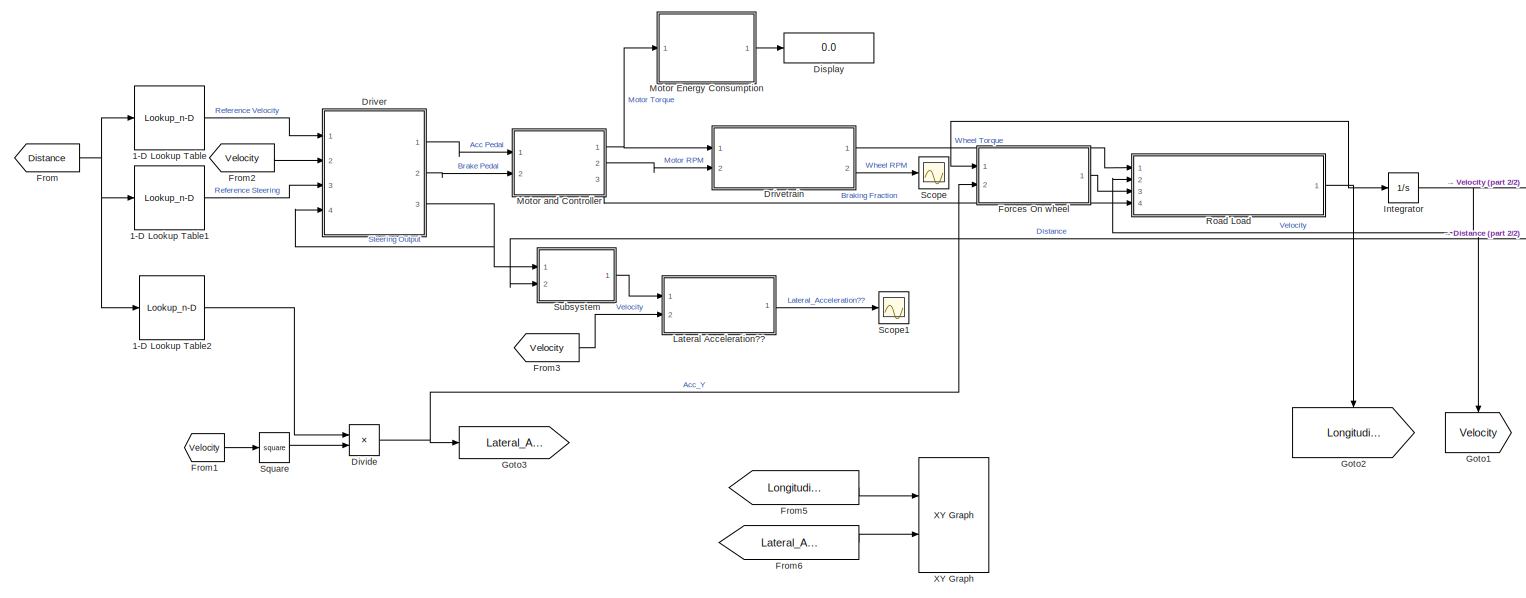
[diagram: root canvas - part 1/2, most of the canvas]
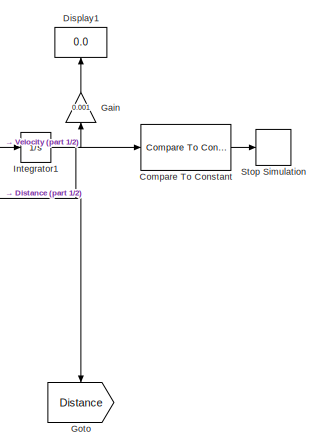
[diagram: root canvas - part 2/2, middle right region]
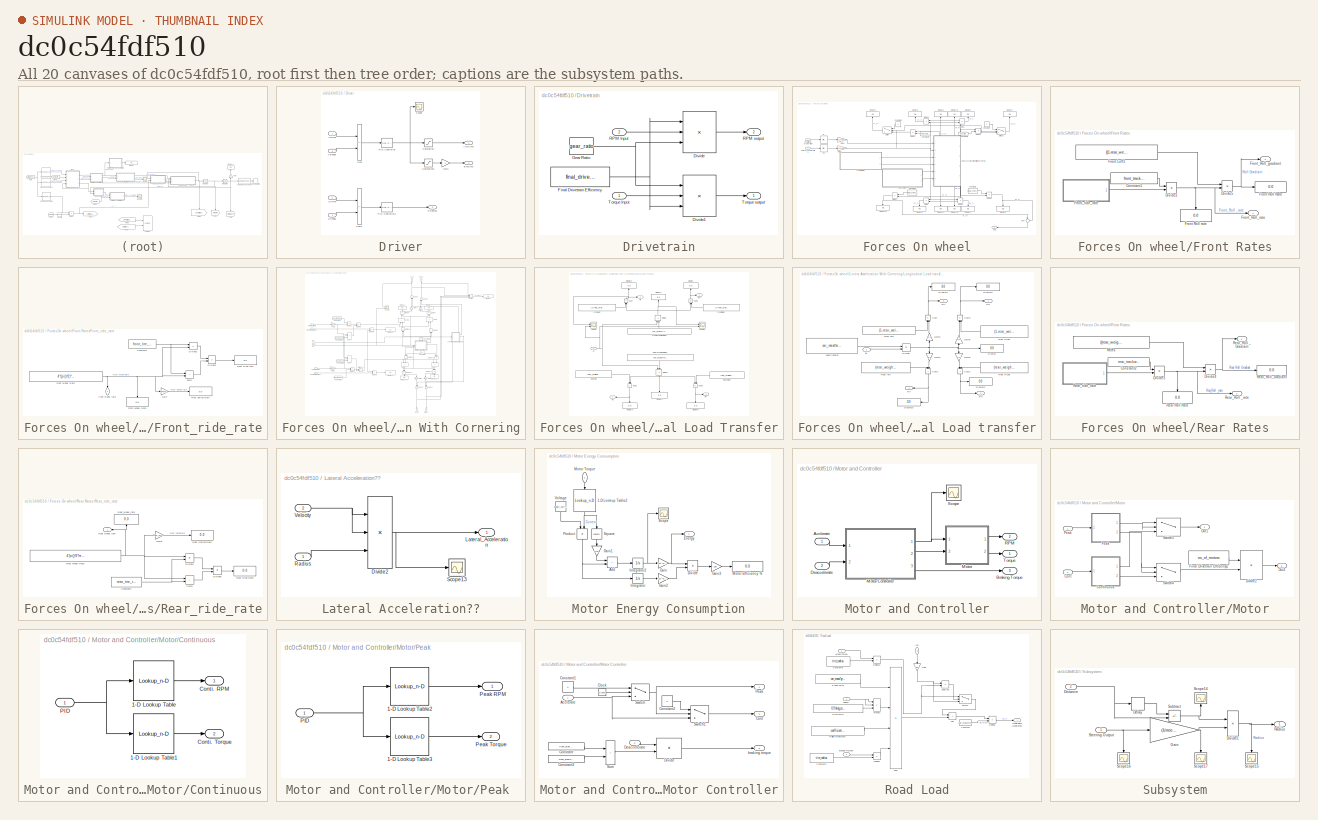
[diagram: thumbnail index - all 20 canvases of the model, root first then tree order]
MODEL slx_dc0c54fdf510
KIND model
CONFIG AbsTol = auto
CONFIG EnableMultiTasking = off
CONFIG FixedStep = 1
CONFIG InitFcn = Acc_x=0;
CONFIG MaxStep = auto
CONFIG MinStep = auto
CONFIG RelTol = 1e-4
CONFIG SampleTimeConstraint = Unconstrained
CONFIG SolverName = ode45
CONFIG StartTime = 0
CONFIG StopTime = 1600
BLOCK [Lookup_n-D] 1-D Lookup Table
  BreakpointsForDimension1 = distance(1:2:x_leng*no_laps)
  InputPortMap = u0
  InternalRulePriority = Speed
  NumberOfTableDimensions = 1
  Ports = [1, 1]
  RndMeth = Simplest
  Table = achievable_velocity
BLOCK [Lookup_n-D] 1-D Lookup Table1
  BreakpointsForDimension1 = distance(1:x_leng*no_laps)
  InputPortMap = u0
  InternalRulePriority = Speed
  NumberOfTableDimensions = 1
  Ports = [1, 1]
  RndMeth = Simplest
  Table = reference_steering_angle
BLOCK [Lookup_n-D] 1-D Lookup Table2
  BreakpointsForDimension1 = distance(1:2:x_leng*no_laps)
  InputPortMap = u0
  InternalRulePriority = Speed
  NumberOfTableDimensions = 1
  Ports = [1, 1]
  RndMeth = Simplest
  Table = rho
BLOCK [Reference] Compare To Constant  REF=simulink/Logic and Bit
Operations/Compare
To Constant
  Ports = [1, 1]
  SourceBlock = simulink/Logic and Bit\nOperations/Compare\nTo Constant
  SourceProductBaseCode = SL
  SourceType = Compare To Constant
BLOCK [Display] Display
  Decimation = 1
  Ports = [1]
BLOCK [Display] Display1
  Decimation = 1
  NameLocation = right
  Ports = [1]
BLOCK [Product] Divide
  Inputs = **
  Ports = [2, 1]
BLOCK [SubSystem] Driver
  Ports = [4, 3]
  RequestExecContextInheritance = off
BLOCK [Outport] Driver/AcclCmd
BLOCK [Outport] Driver/BrkCmd
  Port = 2
BLOCK [Gain] Driver/Gain
  Gain = -1
BLOCK [Reference] Driver/PID Controller  REF=pid_lib/PID Controller
  Ports = [1, 1]
  SourceBlock = pid_lib/PID Controller
  SourceProductBaseCode = SL
  SourceType = PID 1dof
BLOCK [Reference] Driver/PID Controller1  REF=pid_lib/PID Controller
  Ports = [1, 1]
  SourceBlock = pid_lib/PID Controller
  SourceProductBaseCode = SL
  SourceType = PID 1dof
BLOCK [Saturate] Driver/Saturation
  LowerLimit = 0
  UpperLimit = 1
BLOCK [Saturate] Driver/Saturation1
  LowerLimit = -1
  UpperLimit = 0
BLOCK [Scope] Driver/Scope
  Floating = off
  NumInputPorts = 1
  Ports = [1]
  ScopeSpecificationString = Simulink.scopes.TimeScopeBlockCfg('CurrentConfiguration', extmgr.ConfigurationSet(extmgr.Configuration('Core','General UI',true),extmgr.Configuration('Core','Source UI',true),extmgr.Configuration('Sources','WiredSimulink',true,'DataLoggingVariableName','ScopeData1'),extmgr.Configuration('Visuals','Time Domain',true,'SerializedDisplays',{struct('MinYLimReal','-12.73157','MaxYLimReal','26.27363','YL...<+1406ch>
BLOCK [Inport] Driver/StrFbdk
  Port = 4
BLOCK [Inport] Driver/StrRef
  Port = 3
BLOCK [Outport] Driver/Streeing
  Port = 3
BLOCK [Sum] Driver/Sum
  IconShape = rectangular
  Inputs = +-
  Ports = [2, 1]
BLOCK [Sum] Driver/Sum1
  IconShape = rectangular
  Inputs = +-
  Ports = [2, 1]
BLOCK [Inport] Driver/VelFbdk
  Port = 2
BLOCK [Inport] Driver/VelRef
BLOCK [SubSystem] Drivetrain
  Ports = [2, 2]
  RequestExecContextInheritance = off
BLOCK [Product] Drivetrain/Divide
  Inputs = **/
  Ports = [3, 1]
BLOCK [Product] Drivetrain/Divide1
  Inputs = ***
  Ports = [3, 1]
BLOCK [Constant] Drivetrain/Final Drivetrain Efficiency
  Value = final_drivetrain_efficiency
BLOCK [Constant] Drivetrain/Gear Ratio
  Value = gear_ratio
BLOCK [Inport] Drivetrain/RPM Input
  Port = 2
BLOCK [Outport] Drivetrain/RPM output
  Port = 2
BLOCK [Inport] Drivetrain/Torque Input
BLOCK [Outport] Drivetrain/Torque output
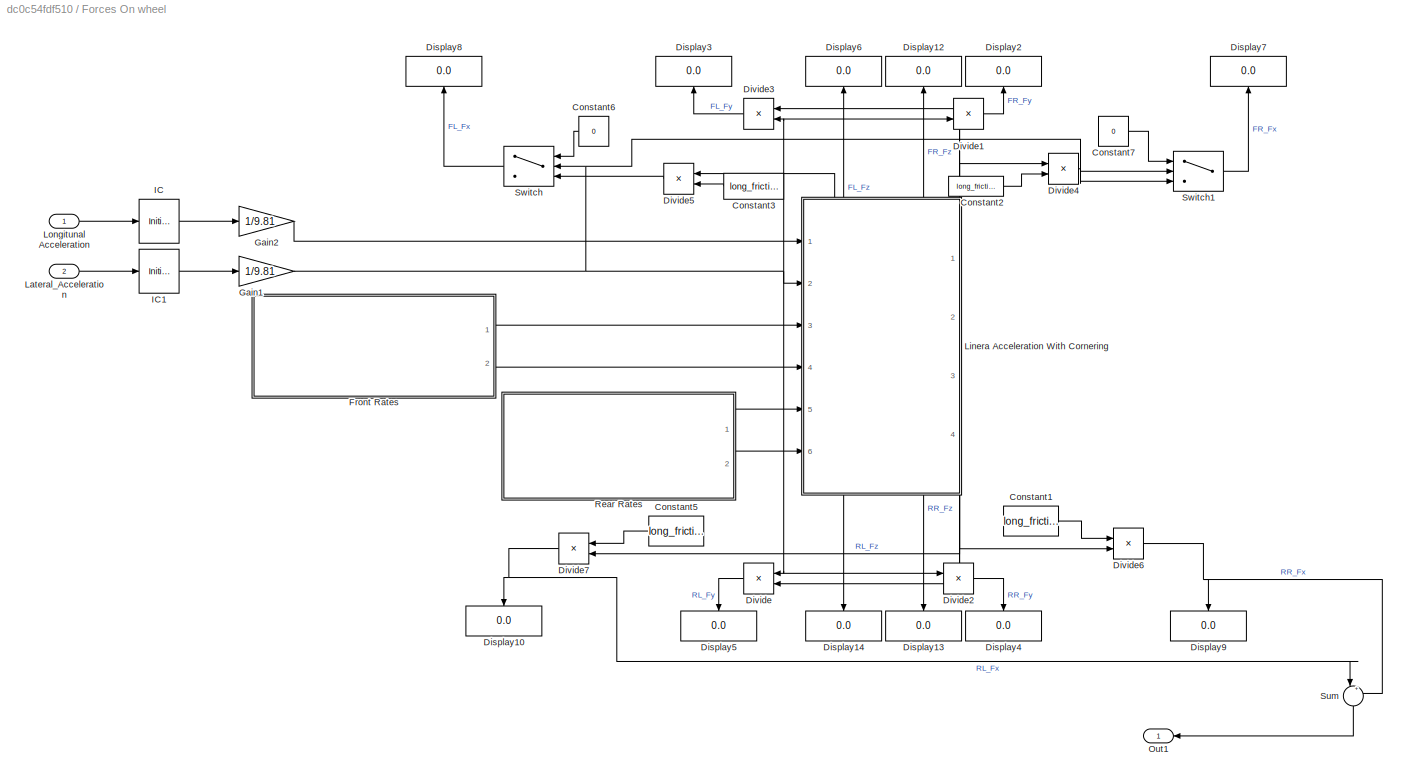
BLOCK [SubSystem] Forces On wheel
  Ports = [2, 1]
  RequestExecContextInheritance = off
BLOCK [Constant] Forces On wheel/Constant1
  Value = long_friction
BLOCK [Constant] Forces On wheel/Constant2
  Value = long_friction
BLOCK [Constant] Forces On wheel/Constant3
  Value = long_friction
BLOCK [Constant] Forces On wheel/Constant5
  Value = long_friction
BLOCK [Constant] Forces On wheel/Constant6
  Value = 0
BLOCK [Constant] Forces On wheel/Constant7
  Value = 0
BLOCK [Display] Forces On wheel/Display10
  Decimation = 1
  NameLocation = left
  Ports = [1]
BLOCK [Display] Forces On wheel/Display12
  Decimation = 1
  NameLocation = right
  Ports = [1]
BLOCK [Display] Forces On wheel/Display13
  Decimation = 1
  NameLocation = left
  Ports = [1]
BLOCK [Display] Forces On wheel/Display14
  Decimation = 1
  NameLocation = left
  Ports = [1]
BLOCK [Display] Forces On wheel/Display2
  Decimation = 1
  NameLocation = right
  Ports = [1]
BLOCK [Display] Forces On wheel/Display3
  Decimation = 1
  NameLocation = right
  Ports = [1]
BLOCK [Display] Forces On wheel/Display4
  Decimation = 1
  NameLocation = left
  Ports = [1]
BLOCK [Display] Forces On wheel/Display5
  Decimation = 1
  NameLocation = left
  Ports = [1]
BLOCK [Display] Forces On wheel/Display6
  Decimation = 1
  NameLocation = right
  Ports = [1]
BLOCK [Display] Forces On wheel/Display7
  Decimation = 1
  NameLocation = right
  Ports = [1]
BLOCK [Display] Forces On wheel/Display8
  Decimation = 1
  NameLocation = right
  Ports = [1]
BLOCK [Display] Forces On wheel/Display9
  Decimation = 1
  NameLocation = left
  Ports = [1]
BLOCK [Product] Forces On wheel/Divide
  Inputs = **
  Ports = [2, 1]
BLOCK [Product] Forces On wheel/Divide1
  Inputs = **
  Ports = [2, 1]
BLOCK [Product] Forces On wheel/Divide2
  Inputs = **
  Ports = [2, 1]
BLOCK [Product] Forces On wheel/Divide3
  Inputs = **
  Ports = [2, 1]
BLOCK [Product] Forces On wheel/Divide4
  Inputs = **
  Ports = [2, 1]
BLOCK [Product] Forces On wheel/Divide5
  Inputs = **
  Ports = [2, 1]
BLOCK [Product] Forces On wheel/Divide6
  Inputs = **
  Ports = [2, 1]
BLOCK [Product] Forces On wheel/Divide7
  Inputs = **
  Ports = [2, 1]
BLOCK [SubSystem] Forces On wheel/Front Rates
  Ports = [0, 2]
  RequestExecContextInheritance = off
BLOCK [Constant] Forces On wheel/Front Rates/Constant1
  Value = front_trackwidth^2*(pi()/360)
BLOCK [Product] Forces On wheel/Front Rates/Divide2
  Inputs = **
  NameLocation = top
  Ports = [2, 1]
BLOCK [Product] Forces On wheel/Front Rates/Divide5
  Inputs = */
  NameLocation = top
  Ports = [2, 1]
BLOCK [Constant] Forces On wheel/Front Rates/Front Left1
  Value = ((1-rear_weight_distribution)*car_mass/2)*2*9.81*h1f
BLOCK [Display] Forces On wheel/Front Rates/Front Roll Rate
  Decimation = 1
  Ports = [1]
BLOCK [Display] Forces On wheel/Front Rates/Front Roll rate
  Decimation = 1
  Ports = [1]
BLOCK [Outport] Forces On wheel/Front Rates/Front_Roll_gradiant
  Port = 2
BLOCK [Outport] Forces On wheel/Front Rates/Front_Roll_rate
BLOCK [SubSystem] Forces On wheel/Front Rates/Front_ride_rate
  Ports = [0, 1]
  RequestExecContextInheritance = off
BLOCK [Constant] Forces On wheel/Front Rates/Front_ride_rate/Constant1
  Value = front_tire_rate
BLOCK [Product] Forces On wheel/Front Rates/Front_ride_rate/Divide2
  Inputs = **
  NameLocation = top
  Ports = [2, 1]
BLOCK [Product] Forces On wheel/Front Rates/Front_ride_rate/Divide3
  Inputs = */
  NameLocation = top
  Ports = [2, 1]
BLOCK [Display] Forces On wheel/Front Rates/Front_ride_rate/Front Ride rate
  Decimation = 1
  Ports = [1]
BLOCK [Display] Forces On wheel/Front Rates/Front_ride_rate/Front Spring Rate
  Decimation = 1
  Ports = [1]
BLOCK [Display] Forces On wheel/Front Rates/Front_ride_rate/Front Wheel Rate
  Decimation = 1
  Ports = [1]
BLOCK [Constant] Forces On wheel/Front Rates/Front_ride_rate/Front wheel Rate
  Value = 4*(pi()^2)*front_frequency^2*(1-tire_radius)*car_mass/(2*1000)
BLOCK [Gain] Forces On wheel/Front Rates/Front_ride_rate/Gain
  Gain = front_motion_ratio^2
BLOCK [Sum] Forces On wheel/Front Rates/Front_ride_rate/Sum4
  IconShape = rectangular
  Ports = [2, 1]
BLOCK [Outport] Forces On wheel/Front Rates/Front_ride_rate/front wheel rate
  NameLocation = left
BLOCK [Gain] Forces On wheel/Gain1
  Gain = 1/9.81
BLOCK [Gain] Forces On wheel/Gain2
  Gain = 1/9.81
BLOCK [InitialCondition] Forces On wheel/IC
  Value = 0
BLOCK [InitialCondition] Forces On wheel/IC1
  Value = 0
BLOCK [Inport] Forces On wheel/Lateral_Acceleration
  Port = 2
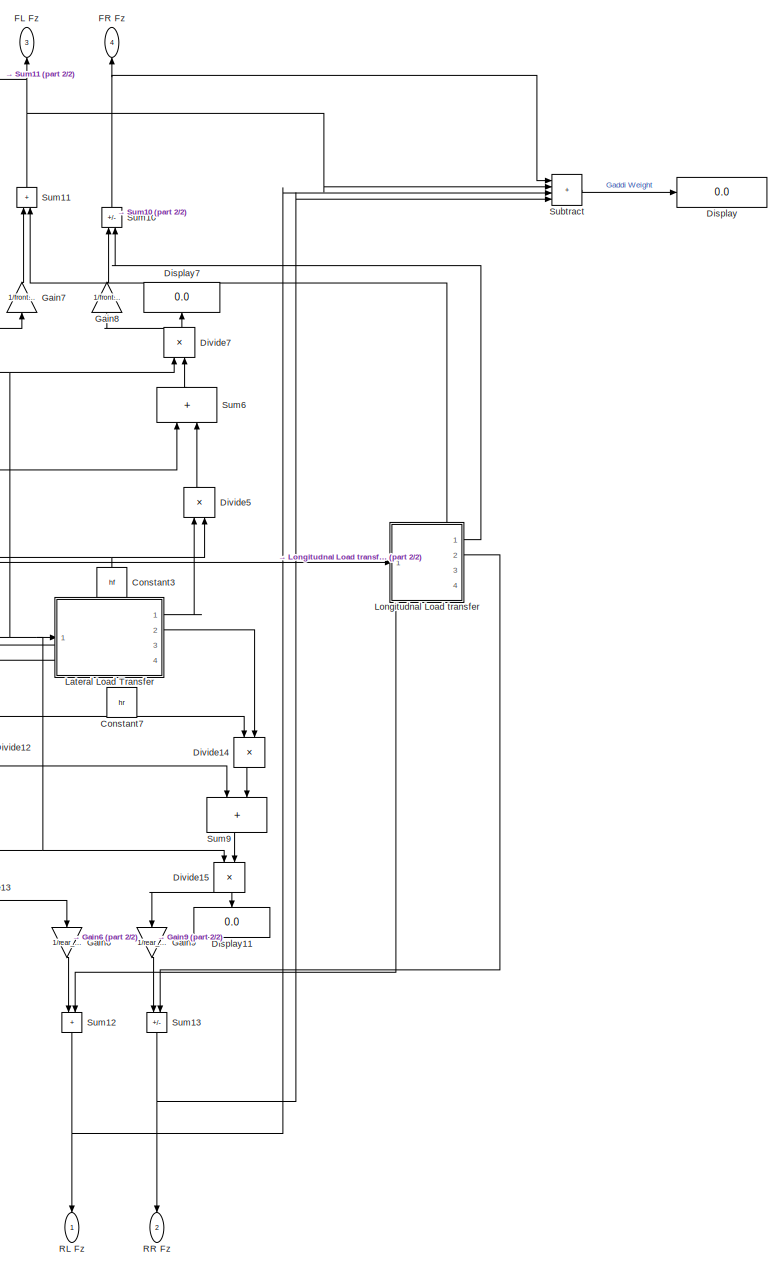
[diagram: Forces On wheel/Linera Acceleration With Cornering - part 1/2, right side, full height]
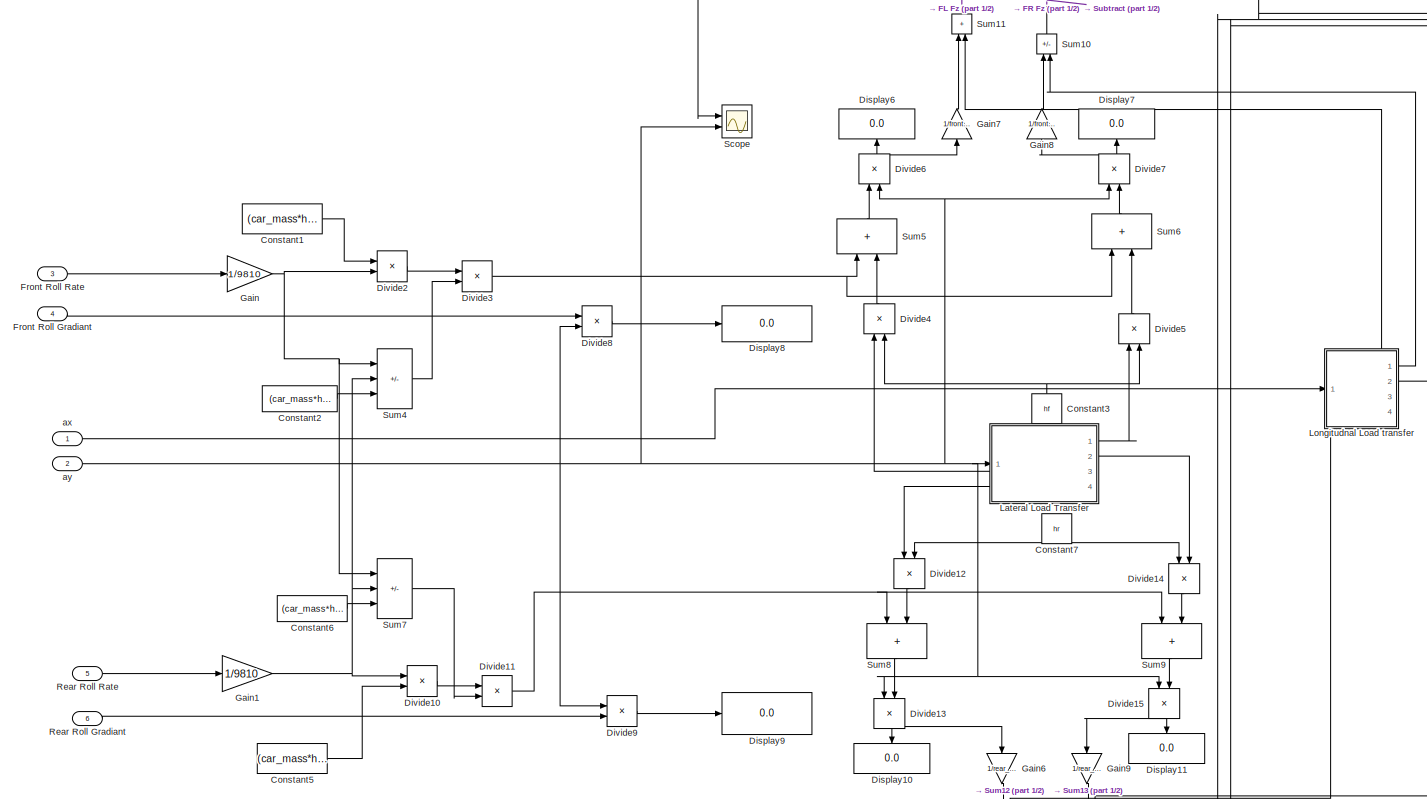
[diagram: Forces On wheel/Linera Acceleration With Cornering - part 2/2, full width, middle band]
BLOCK [SubSystem] Forces On wheel/Linera Acceleration With Cornering
  PortSchema = {"entries":[{"content":{"sides":[{"content":{"connectorIds":["In1","In2","In3","In4","In5","In6"]},"type":"ConnectorPlacement.EquallySpacedRectSide","uuid":"d773b041-193b-40c1-84f4-1820b4697a0f"},{"content":{"connectorIds":[],"side":"RIGHT"},"type":"ConnectorPlacement.EquallySpacedRectSide","uuid":"63078260-0e7d-46b5-b894-dfb0cdd11ba9"},{"content":{"connectorIds":["Out3","Out4"],"side":"TOP"},"typ...<+578ch>
  Ports = [6, 4]
  RequestExecContextInheritance = off
BLOCK [Outport] Forces On wheel/Linera Acceleration With Cornering/ FL Fz
  NameLocation = right
  Port = 3
BLOCK [Constant] Forces On wheel/Linera Acceleration With Cornering/Constant1
  Value = (car_mass*h1f)
BLOCK [Constant] Forces On wheel/Linera Acceleration With Cornering/Constant2
  Value = (car_mass*h1f)
BLOCK [Constant] Forces On wheel/Linera Acceleration With Cornering/Constant3
  NameLocation = right
  Value = hf
BLOCK [Constant] Forces On wheel/Linera Acceleration With Cornering/Constant5
  Value = (car_mass*h1r)
BLOCK [Constant] Forces On wheel/Linera Acceleration With Cornering/Constant6
  Value = (car_mass*h1r)
BLOCK [Constant] Forces On wheel/Linera Acceleration With Cornering/Constant7
  NameLocation = left
  Value = hr
BLOCK [Display] Forces On wheel/Linera Acceleration With Cornering/Display
  Decimation = 1
  Ports = [1]
BLOCK [Display] Forces On wheel/Linera Acceleration With Cornering/Display10
  Decimation = 1
  NameLocation = left
  Ports = [1]
BLOCK [Display] Forces On wheel/Linera Acceleration With Cornering/Display11
  Decimation = 1
  NameLocation = left
  Ports = [1]
BLOCK [Display] Forces On wheel/Linera Acceleration With Cornering/Display6
  Decimation = 1
  NameLocation = right
  Ports = [1]
BLOCK [Display] Forces On wheel/Linera Acceleration With Cornering/Display7
  Decimation = 1
  NameLocation = right
  Ports = [1]
BLOCK [Display] Forces On wheel/Linera Acceleration With Cornering/Display8
  Decimation = 1
  Ports = [1]
BLOCK [Display] Forces On wheel/Linera Acceleration With Cornering/Display9
  Decimation = 1
  Ports = [1]
BLOCK [Product] Forces On wheel/Linera Acceleration With Cornering/Divide10
  Inputs = **
  NameLocation = top
  Ports = [2, 1]
BLOCK [Product] Forces On wheel/Linera Acceleration With Cornering/Divide11
  Inputs = */
  NameLocation = top
  Ports = [2, 1]
BLOCK [Product] Forces On wheel/Linera Acceleration With Cornering/Divide12
  Inputs = **
  NameLocation = right
  Ports = [2, 1]
BLOCK [Product] Forces On wheel/Linera Acceleration With Cornering/Divide13
  Inputs = **
  NameLocation = right
  Ports = [2, 1]
BLOCK [Product] Forces On wheel/Linera Acceleration With Cornering/Divide14
  Inputs = **
  NameLocation = right
  Ports = [2, 1]
BLOCK [Product] Forces On wheel/Linera Acceleration With Cornering/Divide15
  Inputs = **
  NameLocation = right
  Ports = [2, 1]
BLOCK [Product] Forces On wheel/Linera Acceleration With Cornering/Divide2
  Inputs = **
  NameLocation = top
  Ports = [2, 1]
BLOCK [Product] Forces On wheel/Linera Acceleration With Cornering/Divide3
  Inputs = */
  NameLocation = top
  Ports = [2, 1]
BLOCK [Product] Forces On wheel/Linera Acceleration With Cornering/Divide4
  Inputs = **
  NameLocation = left
  Ports = [2, 1]
BLOCK [Product] Forces On wheel/Linera Acceleration With Cornering/Divide5
  Inputs = **
  NameLocation = left
  Ports = [2, 1]
BLOCK [Product] Forces On wheel/Linera Acceleration With Cornering/Divide6
  Inputs = **
  NameLocation = left
  Ports = [2, 1]
BLOCK [Product] Forces On wheel/Linera Acceleration With Cornering/Divide7
  Inputs = **
  NameLocation = left
  Ports = [2, 1]
BLOCK [Product] Forces On wheel/Linera Acceleration With Cornering/Divide8
  Inputs = **
  NameLocation = top
  Ports = [2, 1]
BLOCK [Product] Forces On wheel/Linera Acceleration With Cornering/Divide9
  Inputs = **
  NameLocation = top
  Ports = [2, 1]
BLOCK [Outport] Forces On wheel/Linera Acceleration With Cornering/FR Fz
  NameLocation = right
  Port = 4
BLOCK [Inport] Forces On wheel/Linera Acceleration With Cornering/Front Roll Gradiant
  Port = 4
BLOCK [Inport] Forces On wheel/Linera Acceleration With Cornering/Front Roll Rate
  Port = 3
BLOCK [Gain] Forces On wheel/Linera Acceleration With Cornering/Gain
  Gain = 1/9810
BLOCK [Gain] Forces On wheel/Linera Acceleration With Cornering/Gain1
  Gain = 1/9810
BLOCK [Gain] Forces On wheel/Linera Acceleration With Cornering/Gain6
  Gain = 1/rear_trackwidth
  NameLocation = left
BLOCK [Gain] Forces On wheel/Linera Acceleration With Cornering/Gain7
  Gain = 1/front_trackwidth
  NameLocation = right
BLOCK [Gain] Forces On wheel/Linera Acceleration With Cornering/Gain8
  Gain = 1/front_trackwidth
  NameLocation = right
BLOCK [Gain] Forces On wheel/Linera Acceleration With Cornering/Gain9
  Gain = 1/rear_trackwidth
  NameLocation = left
BLOCK [SubSystem] Forces On wheel/Linera Acceleration With Cornering/Lateral Load Transfer
  PortSchema = {"entries":[{"content":{"sides":[{"content":{"connectorIds":["Out3","In1","Out4"]},"type":"ConnectorPlacement.EquallySpacedRectSide","uuid":"3c1d5b41-10a3-449f-a4be-56571e187b1f"},{"content":{"connectorIds":["Out1","Out2"],"side":"RIGHT"},"type":"ConnectorPlacement.EquallySpacedRectSide","uuid":"93fd1353-89e6-4160-b3cc-079c084db1dd"},{"content":{"connectorIds":[],"side":"TOP"},"type":"ConnectorPla...<+405ch>
  Ports = [1, 4]
  RequestExecContextInheritance = off
BLOCK [Display] Forces On wheel/Linera Acceleration With Cornering/Lateral Load Transfer/Display
  Decimation = 1
  NameLocation = right
  Ports = [1]
BLOCK [Display] Forces On wheel/Linera Acceleration With Cornering/Lateral Load Transfer/Display1
  Decimation = 1
  NameLocation = right
  Ports = [1]
BLOCK [Display] Forces On wheel/Linera Acceleration With Cornering/Lateral Load Transfer/Display2
  Decimation = 1
  NameLocation = right
  Ports = [1]
BLOCK [Display] Forces On wheel/Linera Acceleration With Cornering/Lateral Load Transfer/Display3
  Decimation = 1
  NameLocation = left
  Ports = [1]
BLOCK [Display] Forces On wheel/Linera Acceleration With Cornering/Lateral Load Transfer/Display4
  Decimation = 1
  NameLocation = left
  Ports = [1]
BLOCK [Display] Forces On wheel/Linera Acceleration With Cornering/Lateral Load Transfer/Display5
  Decimation = 1
  NameLocation = left
  Ports = [1]
BLOCK [Product] Forces On wheel/Linera Acceleration With Cornering/Lateral Load Transfer/Divide
  Inputs = **
  NameLocation = left
  Ports = [2, 1]
BLOCK [Product] Forces On wheel/Linera Acceleration With Cornering/Lateral Load Transfer/Divide1
  Inputs = **
  NameLocation = left
  Ports = [2, 1]
BLOCK [Constant] Forces On wheel/Linera Acceleration With Cornering/Lateral Load Transfer/Front Dynamic weight
  NameLocation = left
  Value = car_mass*(1-rear_weight_distribution)*center_of_gravity/front_trackwidth
BLOCK [Constant] Forces On wheel/Linera Acceleration With Cornering/Lateral Load Transfer/Front Left
  Value = (1-rear_weight_distribution)*car_mass/2
BLOCK [Constant] Forces On wheel/Linera Acceleration With Cornering/Lateral Load Transfer/Front Right
  Value = (1-rear_weight_distribution)*car_mass/2
BLOCK [Constant] Forces On wheel/Linera Acceleration With Cornering/Lateral Load Transfer/Rear Dynamic weight
  NameLocation = left
  Value = car_mass*rear_weight_distribution*center_of_gravity/rear_trackwidth
BLOCK [Constant] Forces On wheel/Linera Acceleration With Cornering/Lateral Load Transfer/Rear Right
  Value = rear_weight_distribution*car_mass/2
BLOCK [Constant] Forces On wheel/Linera Acceleration With Cornering/Lateral Load Transfer/Rear left
  Value = rear_weight_distribution*car_mass/2
BLOCK [Scope] Forces On wheel/Linera Acceleration With Cornering/Lateral Load Transfer/Scope
  Floating = off
  NumInputPorts = 2
  Ports = [2]
  ScopeSpecificationString = Simulink.scopes.TimeScopeBlockCfg('CurrentConfiguration', extmgr.ConfigurationSet(extmgr.Configuration('Core','General UI',true),extmgr.Configuration('Core','Source UI',true),extmgr.Configuration('Sources','WiredSimulink',true,'DataLoggingVariableName','ScopeData4'),extmgr.Configuration('Visuals','Time Domain',true,'SerializedDisplays',{struct('MinYLimReal','3.52971','MaxYLimReal','61.88065','YLab...<+1419ch>
BLOCK [Scope] Forces On wheel/Linera Acceleration With Cornering/Lateral Load Transfer/Scope1
  Floating = off
  NumInputPorts = 2
  Ports = [2]
  ScopeSpecificationString = Simulink.scopes.TimeScopeBlockCfg('CurrentConfiguration', extmgr.ConfigurationSet(extmgr.Configuration('Core','General UI',true),extmgr.Configuration('Core','Source UI',true),extmgr.Configuration('Sources','WiredSimulink',true,'DataLoggingVariableName','ScopeData5'),extmgr.Configuration('Visuals','Time Domain',true,'SerializedDisplays',{struct('MinYLimReal','-385.82899','MaxYLimReal','65.35379','Y...<+1453ch>
BLOCK [Sum] Forces On wheel/Linera Acceleration With Cornering/Lateral Load Transfer/Sum
  IconShape = rectangular
  NameLocation = right
  Ports = [2, 1]
BLOCK [Sum] Forces On wheel/Linera Acceleration With Cornering/Lateral Load Transfer/Sum1
  IconShape = rectangular
  NameLocation = left
  Ports = [2, 1]
BLOCK [Sum] Forces On wheel/Linera Acceleration With Cornering/Lateral Load Transfer/Sum2
  IconShape = rectangular
  Inputs = -+
  NameLocation = left
  Ports = [2, 1]
BLOCK [Sum] Forces On wheel/Linera Acceleration With Cornering/Lateral Load Transfer/Sum3
  IconShape = rectangular
  Inputs = -+
  NameLocation = left
  Ports = [2, 1]
BLOCK [Inport] Forces On wheel/Linera Acceleration With Cornering/Lateral Load Transfer/ay
BLOCK [Outport] Forces On wheel/Linera Acceleration With Cornering/Lateral Load Transfer/wlf
  NameLocation = top
  Port = 3
BLOCK [Outport] Forces On wheel/Linera Acceleration With Cornering/Lateral Load Transfer/wlr
  Port = 4
BLOCK [Outport] Forces On wheel/Linera Acceleration With Cornering/Lateral Load Transfer/wrf
BLOCK [Outport] Forces On wheel/Linera Acceleration With Cornering/Lateral Load Transfer/wrr
  Port = 2
BLOCK [SubSystem] Forces On wheel/Linera Acceleration With Cornering/Longitudnal Load transfer
  PortSchema = {"entries":[{"content":{"sides":[{"content":{"connectorIds":["Out3","In1","Out4"]},"type":"ConnectorPlacement.EquallySpacedRectSide","uuid":"0af3428f-ed27-4406-8056-80f0213c93e8"},{"content":{"connectorIds":["Out1","Out2"],"side":"RIGHT"},"type":"ConnectorPlacement.EquallySpacedRectSide","uuid":"4433f412-cc8d-4119-9301-f989dff2ced8"},{"content":{"connectorIds":[],"side":"TOP"},"type":"ConnectorPla...<+405ch>
  Ports = [1, 4]
  RequestExecContextInheritance = off
BLOCK [Display] Forces On wheel/Linera Acceleration With Cornering/Longitudnal Load transfer/Display
  Decimation = 1
  Ports = [1]
BLOCK [Display] Forces On wheel/Linera Acceleration With Cornering/Longitudnal Load transfer/Display1
  Decimation = 1
  Ports = [1]
BLOCK [Display] Forces On wheel/Linera Acceleration With Cornering/Longitudnal Load transfer/Display2
  Decimation = 1
  Ports = [1]
BLOCK [Display] Forces On wheel/Linera Acceleration With Cornering/Longitudnal Load transfer/Display3
  Decimation = 1
  NameLocation = top
  Ports = [1]
BLOCK [Display] Forces On wheel/Linera Acceleration With Cornering/Longitudnal Load transfer/Display4
  Decimation = 1
  Ports = [1]
BLOCK [Product] Forces On wheel/Linera Acceleration With Cornering/Longitudnal Load transfer/Divide
  Inputs = **
  Ports = [2, 1]
BLOCK [Constant] Forces On wheel/Linera Acceleration With Cornering/Longitudnal Load transfer/Front Left
  Value = (1-rear_weight_distribution)*car_mass/2
BLOCK [Constant] Forces On wheel/Linera Acceleration With Cornering/Longitudnal Load transfer/Front Right
  Value = (1-rear_weight_distribution)*car_mass/2
BLOCK [Gain] Forces On wheel/Linera Acceleration With Cornering/Longitudnal Load transfer/Gain2
  Gain = 0.5
  NameLocation = right
BLOCK [Gain] Forces On wheel/Linera Acceleration With Cornering/Longitudnal Load transfer/Gain3
  Gain = 0.5
  NameLocation = left
BLOCK [Gain] Forces On wheel/Linera Acceleration With Cornering/Longitudnal Load transfer/Gain4
  Gain = 0.5
  NameLocation = left
BLOCK [Gain] Forces On wheel/Linera Acceleration With Cornering/Longitudnal Load transfer/Gain5
  Gain = 0.5
  NameLocation = right
BLOCK [Constant] Forces On wheel/Linera Acceleration With Cornering/Longitudnal Load transfer/Load transfer
  Value = car_mass*center_of_gravity/wheelbase
BLOCK [Constant] Forces On wheel/Linera Acceleration With Cornering/Longitudnal Load transfer/Rear Right
  Value = (rear_weight_distribution)*car_mass/2
BLOCK [Constant] Forces On wheel/Linera Acceleration With Cornering/Longitudnal Load transfer/Rear left
  Value = (rear_weight_distribution)*car_mass/2
BLOCK [Sum] Forces On wheel/Linera Acceleration With Cornering/Longitudnal Load transfer/Sum
  IconShape = rectangular
  Inputs = +-
  NameLocation = right
  Ports = [2, 1]
BLOCK [Sum] Forces On wheel/Linera Acceleration With Cornering/Longitudnal Load transfer/Sum1
  IconShape = rectangular
  NameLocation = left
  Ports = [2, 1]
BLOCK [Sum] Forces On wheel/Linera Acceleration With Cornering/Longitudnal Load transfer/Sum2
  IconShape = rectangular
  NameLocation = left
  Ports = [2, 1]
BLOCK [Sum] Forces On wheel/Linera Acceleration With Cornering/Longitudnal Load transfer/Sum3
  IconShape = rectangular
  Inputs = -+
  NameLocation = left
  Ports = [2, 1]
BLOCK [Inport] Forces On wheel/Linera Acceleration With Cornering/Longitudnal Load transfer/ax
BLOCK [Outport] Forces On wheel/Linera Acceleration With Cornering/Longitudnal Load transfer/wlf
  NameLocation = right
  Port = 3
BLOCK [Outport] Forces On wheel/Linera Acceleration With Cornering/Longitudnal Load transfer/wlr
  Port = 4
BLOCK [Outport] Forces On wheel/Linera Acceleration With Cornering/Longitudnal Load transfer/wrf
BLOCK [Outport] Forces On wheel/Linera Acceleration With Cornering/Longitudnal Load transfer/wrr
  Port = 2
BLOCK [Outport] Forces On wheel/Linera Acceleration With Cornering/RL Fz
  NameLocation = left
BLOCK [Outport] Forces On wheel/Linera Acceleration With Cornering/RR Fz
  NameLocation = left
  Port = 2
BLOCK [Inport] Forces On wheel/Linera Acceleration With Cornering/Rear Roll Gradiant
  Port = 6
BLOCK [Inport] Forces On wheel/Linera Acceleration With Cornering/Rear Roll Rate
  Port = 5
BLOCK [Scope] Forces On wheel/Linera Acceleration With Cornering/Scope
  Floating = off
  NumInputPorts = 2
  Ports = [2]
  ScopeSpecificationString = Simulink.scopes.TimeScopeBlockCfg('CurrentConfiguration', extmgr.ConfigurationSet(extmgr.Configuration('Core','General UI',true),extmgr.Configuration('Core','Source UI',true),extmgr.Configuration('Sources','WiredSimulink',true,'DataLoggingVariableName','ScopeData3'),extmgr.Configuration('Visuals','Time Domain',true,'SerializedDisplays',{struct('MinYLimReal','-33.22918','MaxYLimReal','138.63904','Y...<+1451ch>
BLOCK [Sum] Forces On wheel/Linera Acceleration With Cornering/Subtract
  IconShape = rectangular
  Inputs = ++++
  Ports = [4, 1]
BLOCK [Sum] Forces On wheel/Linera Acceleration With Cornering/Sum10
  IconShape = rectangular
  Inputs = -+
  NameLocation = right
  Ports = [2, 1]
BLOCK [Sum] Forces On wheel/Linera Acceleration With Cornering/Sum11
  IconShape = rectangular
  NameLocation = right
  Ports = [2, 1]
BLOCK [Sum] Forces On wheel/Linera Acceleration With Cornering/Sum12
  IconShape = rectangular
  NameLocation = left
  Ports = [2, 1]
BLOCK [Sum] Forces On wheel/Linera Acceleration With Cornering/Sum13
  IconShape = rectangular
  Inputs = -+
  NameLocation = left
  Ports = [2, 1]
BLOCK [Sum] Forces On wheel/Linera Acceleration With Cornering/Sum4
  IconShape = rectangular
  Inputs = ++-
  Ports = [3, 1]
BLOCK [Sum] Forces On wheel/Linera Acceleration With Cornering/Sum5
  IconShape = rectangular
  NameLocation = right
  Ports = [2, 1]
BLOCK [Sum] Forces On wheel/Linera Acceleration With Cornering/Sum6
  IconShape = rectangular
  NameLocation = right
  Ports = [2, 1]
BLOCK [Sum] Forces On wheel/Linera Acceleration With Cornering/Sum7
  IconShape = rectangular
  Inputs = ++-
  Ports = [3, 1]
BLOCK [Sum] Forces On wheel/Linera Acceleration With Cornering/Sum8
  IconShape = rectangular
  NameLocation = left
  Ports = [2, 1]
BLOCK [Sum] Forces On wheel/Linera Acceleration With Cornering/Sum9
  IconShape = rectangular
  NameLocation = left
  Ports = [2, 1]
BLOCK [Inport] Forces On wheel/Linera Acceleration With Cornering/ax
BLOCK [Inport] Forces On wheel/Linera Acceleration With Cornering/ay
  Port = 2
BLOCK [Inport] Forces On wheel/Longitunal Acceleration
BLOCK [Outport] Forces On wheel/Out1
BLOCK [SubSystem] Forces On wheel/Rear Rates
  Ports = [0, 2]
  RequestExecContextInheritance = off
BLOCK [Constant] Forces On wheel/Rear Rates/Constant2
  Value = rear_trackwidth^2*(pi()/360)
BLOCK [Product] Forces On wheel/Rear Rates/Divide3
  Inputs = **
  NameLocation = top
  Ports = [2, 1]
BLOCK [Product] Forces On wheel/Rear Rates/Divide4
  Inputs = */
  NameLocation = top
  Ports = [2, 1]
BLOCK [Constant] Forces On wheel/Rear Rates/Rates
  Value = ((rear_weight_distribution)*car_mass/2)*2*9.81*h1r
BLOCK [Display] Forces On wheel/Rear Rates/Rear Roll Rate
  Decimation = 1
  Ports = [1]
BLOCK [Outport] Forces On wheel/Rear Rates/Rear_Roll _Gradiant
  Port = 2
BLOCK [Outport] Forces On wheel/Rear Rates/Rear_Roll _rate
BLOCK [Display] Forces On wheel/Rear Rates/Rear_Roll_Gradiant
  Decimation = 1
  Ports = [1]
BLOCK [SubSystem] Forces On wheel/Rear Rates/Rear_ride_rate
  Ports = [0, 1]
  RequestExecContextInheritance = off
BLOCK [Constant] Forces On wheel/Rear Rates/Rear_ride_rate/Constant2
  Value = rear_tire_rate
BLOCK [Product] Forces On wheel/Rear Rates/Rear_ride_rate/Divide4
  Inputs = **
  NameLocation = top
  Ports = [2, 1]
BLOCK [Product] Forces On wheel/Rear Rates/Rear_ride_rate/Divide5
  Inputs = */
  NameLocation = top
  Ports = [2, 1]
BLOCK [Gain] Forces On wheel/Rear Rates/Rear_ride_rate/Gain1
  Gain = rear_motion_ratio^2
BLOCK [Display] Forces On wheel/Rear Rates/Rear_ride_rate/Rear Ride Rate
  Decimation = 1
  Ports = [1]
BLOCK [Display] Forces On wheel/Rear Rates/Rear_ride_rate/Rear Spring Rate
  Decimation = 1
  Ports = [1]
BLOCK [Constant] Forces On wheel/Rear Rates/Rear_ride_rate/Rear Wheel Rate
  Value = 4*pi()^2*rear_frequency^2*rear_weight_distribution*car_mass/(2*1000)
BLOCK [Outport] Forces On wheel/Rear Rates/Rear_ride_rate/Rear wheel rate
  NameLocation = top
BLOCK [Display] Forces On wheel/Rear Rates/Rear_ride_rate/Rear_wheel_rate
  Decimation = 1
  NameLocation = top
  Ports = [1]
BLOCK [Sum] Forces On wheel/Rear Rates/Rear_ride_rate/Sum5
  IconShape = rectangular
  Ports = [2, 1]
BLOCK [Sum] Forces On wheel/Sum
  Inputs = |++
  NameLocation = left
  Ports = [2, 1]
BLOCK [Switch] Forces On wheel/Switch
  InputSameDT = off
  NameLocation = top
  SaturateOnIntegerOverflow = off
BLOCK [Switch] Forces On wheel/Switch1
  InputSameDT = off
  NameLocation = top
  SaturateOnIntegerOverflow = off
BLOCK [From] From
  GotoTag = Distance
BLOCK [From] From1
  GotoTag = Velocity
BLOCK [From] From2
  GotoTag = Velocity
BLOCK [From] From3
  GotoTag = Velocity
BLOCK [From] From5
  GotoTag = Longitudinal_Acceleration
BLOCK [From] From6
  GotoTag = Lateral_Acceleration
BLOCK [Gain] Gain
  Gain = 0.001
  NameLocation = right
BLOCK [Goto] Goto
  GotoTag = Distance
  NameLocation = right
BLOCK [Goto] Goto1
  GotoTag = Velocity
  NameLocation = right
BLOCK [Goto] Goto2
  GotoTag = Longitudinal_Acceleration
  NameLocation = right
BLOCK [Goto] Goto3
  GotoTag = Lateral_Acceleration
  NameLocation = top
BLOCK [Integrator] Integrator
  Ports = [1, 1]
BLOCK [Integrator] Integrator1
  Ports = [1, 1]
BLOCK [SubSystem] Lateral Acceleration??
  Ports = [2, 1]
  RequestExecContextInheritance = off
BLOCK [Product] Lateral Acceleration??/Divide2
  Inputs = **/
  Ports = [3, 1]
BLOCK [Outport] Lateral Acceleration??/Lateral_Acceleration
BLOCK [Inport] Lateral Acceleration??/Radius
BLOCK [Scope] Lateral Acceleration??/Scope13
  Floating = off
  NumInputPorts = 1
  Ports = [1]
  ScopeSpecificationString = Simulink.scopes.TimeScopeBlockCfg('CurrentConfiguration', extmgr.ConfigurationSet(extmgr.Configuration('Core','General UI',true),extmgr.Configuration('Core','Source UI',true),extmgr.Configuration('Sources','WiredSimulink',true,'DataLoggingVariableName','ScopeData1'),extmgr.Configuration('Visuals','Time Domain',true,'SerializedDisplays',{struct('MinYLimReal','-1.02703','MaxYLimReal','0.29346','YLab...<+1462ch>
BLOCK [Inport] Lateral Acceleration??/Velocity
  Port = 2
BLOCK [SubSystem] Motor Energy Consumption
  Ports = [1, 1]
  RequestExecContextInheritance = off
BLOCK [Lookup_n-D] Motor Energy Consumption/1-D Lookup Table2
  BreakpointsForDimension1 = peak_torque
  InputPortMap = u0
  InternalRulePriority = Speed
  NameLocation = left
  NumberOfTableDimensions = 1
  Ports = [1, 1]
  RndMeth = Simplest
  Table = current
BLOCK [Sum] Motor Energy Consumption/Add
  IconShape = rectangular
  Ports = [2, 1]
BLOCK [Product] Motor Energy Consumption/Divide
  Inputs = /*
  Ports = [2, 1]
BLOCK [Outport] Motor Energy Consumption/Energy
BLOCK [Gain] Motor Energy Consumption/Gain
  Gain = (10^-6)/3.6
BLOCK [Gain] Motor Energy Consumption/Gain1
  Gain = 0.02
  NameLocation = left
BLOCK [Gain] Motor Energy Consumption/Gain2
  Gain = (10^-6)/3.6
BLOCK [Gain] Motor Energy Consumption/Gain3
  Gain = 100
BLOCK [Integrator] Motor Energy Consumption/Integrator
  Ports = [1, 1]
BLOCK [Integrator] Motor Energy Consumption/Integrator2
  Ports = [1, 1]
BLOCK [Display] Motor Energy Consumption/Motor Efficiency %
  Decimation = 1
  Ports = [1]
BLOCK [Inport] Motor Energy Consumption/Motor Torque
  NameLocation = left
BLOCK [Product] Motor Energy Consumption/Product
  NameLocation = left
  Ports = [2, 1]
BLOCK [Scope] Motor Energy Consumption/Scope
  Floating = off
  NumInputPorts = 1
  Ports = [1]
  ScopeSpecificationString = Simulink.scopes.TimeScopeBlockCfg('CurrentConfiguration', extmgr.ConfigurationSet(extmgr.Configuration('Core','General UI',true),extmgr.Configuration('Core','Source UI',true),extmgr.Configuration('Sources','WiredSimulink',true,'DataLoggingVariableName','ScopeData1'),extmgr.Configuration('Visuals','Time Domain',true,'SerializedDisplays',{struct('MinYLimReal','-3116942.95879','MaxYLimReal','28052486...<+1491ch>
BLOCK [Math] Motor Energy Consumption/Square
  NameLocation = left
  Operator = square
  Ports = [1, 1]
BLOCK [Constant] Motor Energy Consumption/Voltage
  NameLocation = left
  Value = supply_voltage
BLOCK [SubSystem] Motor and Controller
  Ports = [2, 3]
  RequestExecContextInheritance = off
BLOCK [Outport] Motor and Controller/ RPM
  Port = 2
BLOCK [Inport] Motor and Controller/Acclerate
BLOCK [Outport] Motor and Controller/Braking Torque
  Port = 3
BLOCK [Inport] Motor and Controller/Deaccelerate
  Port = 2
BLOCK [SubSystem] Motor and Controller/Motor
  Ports = [2, 2]
  RequestExecContextInheritance = off
BLOCK [SubSystem] Motor and Controller/Motor Controller
  Ports = [2, 3]
  RequestExecContextInheritance = off
BLOCK [Inport] Motor and Controller/Motor Controller/Acclerate
BLOCK [Clock] Motor and Controller/Motor Controller/Clock
BLOCK [Constant] Motor and Controller/Motor Controller/Constant
  Value = front_braking_torque
BLOCK [Constant] Motor and Controller/Motor Controller/Constant1
  Value = 0
BLOCK [Constant] Motor and Controller/Motor Controller/Constant2
  Value = 0
BLOCK [Constant] Motor and Controller/Motor Controller/Constant3
  Value = Rear_braking_torque
BLOCK [Outport] Motor and Controller/Motor Controller/Cont
  Port = 2
BLOCK [Inport] Motor and Controller/Motor Controller/Deaccelerate
  Port = 2
BLOCK [Product] Motor and Controller/Motor Controller/Divide
  Inputs = **
  Ports = [2, 1]
BLOCK [Outport] Motor and Controller/Motor Controller/Peak
BLOCK [Sum] Motor and Controller/Motor Controller/Sum
  IconShape = rectangular
  Ports = [2, 1]
BLOCK [Switch] Motor and Controller/Motor Controller/Switch
  InputSameDT = off
  SaturateOnIntegerOverflow = off
  Threshold = start_time_for_peak
BLOCK [Switch] Motor and Controller/Motor Controller/Switch1
  Criteria = u2 ~= 0
  InputSameDT = off
  SaturateOnIntegerOverflow = off
BLOCK [Outport] Motor and Controller/Motor Controller/braking torque
  Port = 3
BLOCK [Inport] Motor and Controller/Motor/Cont
  Port = 2
BLOCK [SubSystem] Motor and Controller/Motor/Continuous
  Ports = [1, 2]
  RequestExecContextInheritance = off
BLOCK [Lookup_n-D] Motor and Controller/Motor/Continuous/1-D Lookup Table
  BreakpointsForDimension1 = conti_PID
  InputPortMap = u0
  InternalRulePriority = Speed
  NumberOfTableDimensions = 1
  Ports = [1, 1]
  RndMeth = Simplest
  Table = conti_rpm
BLOCK [Lookup_n-D] Motor and Controller/Motor/Continuous/1-D Lookup Table1
  BreakpointsForDimension1 = conti_PID
  InputPortMap = u0
  InternalRulePriority = Speed
  NumberOfTableDimensions = 1
  Ports = [1, 1]
  RndMeth = Simplest
  Table = conti_torque
BLOCK [Outport] Motor and Controller/Motor/Continuous/Conti. RPM
BLOCK [Outport] Motor and Controller/Motor/Continuous/Conti. Torque
  Port = 2
BLOCK [Inport] Motor and Controller/Motor/Continuous/PID
BLOCK [Product] Motor and Controller/Motor/Divide2
  Inputs = **
  Ports = [2, 1]
BLOCK [Constant] Motor and Controller/Motor/Final Drivetrain Efficiency1
  Value = no_of_motors
BLOCK [Outport] Motor and Controller/Motor/Out1
BLOCK [Outport] Motor and Controller/Motor/Out2
  Port = 2
BLOCK [Inport] Motor and Controller/Motor/Peak
BLOCK [SubSystem] Motor and Controller/Motor/Peak 
  Ports = [1, 2]
  RequestExecContextInheritance = off
BLOCK [Lookup_n-D] Motor and Controller/Motor/Peak /1-D Lookup Table2
  BreakpointsForDimension1 = peak_PID
  InputPortMap = u0
  InternalRulePriority = Speed
  NumberOfTableDimensions = 1
  Ports = [1, 1]
  RndMeth = Simplest
  Table = peak_rpm
BLOCK [Lookup_n-D] Motor and Controller/Motor/Peak /1-D Lookup Table3
  BreakpointsForDimension1 = peak_PID
  InputPortMap = u0
  InternalRulePriority = Speed
  NumberOfTableDimensions = 1
  Ports = [1, 1]
  RndMeth = Simplest
  Table = peak_torque
BLOCK [Inport] Motor and Controller/Motor/Peak /PID
BLOCK [Outport] Motor and Controller/Motor/Peak /Peak RPM
BLOCK [Outport] Motor and Controller/Motor/Peak /Peak Torque
  Port = 2
BLOCK [Switch] Motor and Controller/Motor/Switch3
  Criteria = u2 > Threshold
  InputSameDT = off
  SaturateOnIntegerOverflow = off
BLOCK [Switch] Motor and Controller/Motor/Switch4
  Criteria = u2 > Threshold
  InputSameDT = off
  SaturateOnIntegerOverflow = off
BLOCK [Scope] Motor and Controller/Scope
  Floating = off
  NumInputPorts = 1
  Ports = [1]
  ScopeSpecificationString = Simulink.scopes.TimeScopeBlockCfg('CurrentConfiguration', extmgr.ConfigurationSet(extmgr.Configuration('Core','General UI',true),extmgr.Configuration('Core','Source UI',true),extmgr.Configuration('Sources','WiredSimulink',true,'DataLoggingVariableName','ScopeData18'),extmgr.Configuration('Visuals','Time Domain',true,'SerializedDisplays',{struct('MinYLimReal','-0.125','MaxYLimReal','1.125','YLabelR...<+1366ch>
BLOCK [Outport] Motor and Controller/Torque
BLOCK [SubSystem] Road Load
  Ports = [4, 1]
  RequestExecContextInheritance = off
BLOCK [Sum] Road Load/Add
  IconShape = rectangular
  Inputs = +-
  Ports = [2, 1]
BLOCK [Sum] Road Load/Add1
  IconShape = rectangular
  Inputs = ++++
  Ports = [4, 1]
BLOCK [Inport] Road Load/Braking Fraction
  Port = 4
BLOCK [Constant] Road Load/Constant
  Value = car_mass+rot_mass
BLOCK [Constant] Road Load/Constant4
  Value = tire_radius
BLOCK [Constant] Road Load/Constant8
  Value = tire_radius
BLOCK [Product] Road Load/Divide10
  Inputs = */
  Ports = [2, 1]
BLOCK [Product] Road Load/Divide8
  Inputs = */
  Ports = [2, 1]
BLOCK [Product] Road Load/Divide9
  Inputs = */
  Ports = [2, 1]
BLOCK [Constant] Road Load/Drag Force
  Value = 0.5*drag_coefficient*frontal_area*air_density
BLOCK [Gain] Road Load/Gain
  Gain = 9.81
  NameLocation = left
BLOCK [Constant] Road Load/Grade Force
  Value = car_mass*gravity*sin(grade_of_track)
BLOCK [Inport] Road Load/In5
  NameLocation = left
  Port = 3
BLOCK [Outport] Road Load/Longitudinal Acceleration
BLOCK [Product] Road Load/Product
  Inputs = 3
  Ports = [3, 1]
BLOCK [Constant] Road Load/Rolling Resistance
  Value = coefficient_rolling_resistance*car_mass*gravity
BLOCK [Sum] Road Load/Subtract
  IconShape = rectangular
  Inputs = +-
  Ports = [2, 1]
BLOCK [Switch] Road Load/Switch
  Criteria = u2 > Threshold
  InputSameDT = off
  SaturateOnIntegerOverflow = off
BLOCK [Inport] Road Load/Velocity
  Port = 2
BLOCK [Inport] Road Load/Wheel Torque
BLOCK [Scope] Scope
  Floating = off
  NumInputPorts = 1
  Ports = [1]
  ScopeSpecificationString = Simulink.scopes.TimeScopeBlockCfg('CurrentConfiguration', extmgr.ConfigurationSet(extmgr.Configuration('Core','General UI',true),extmgr.Configuration('Core','Source UI',true),extmgr.Configuration('Sources','WiredSimulink',true,'DataLoggingVariableName','ScopeData3'),extmgr.Configuration('Visuals','Time Domain',true,'SerializedDisplays',{struct('MinYLimReal','-75.6548','MaxYLimReal','680.89322','YL...<+1447ch>
BLOCK [Scope] Scope1
  Floating = off
  NumInputPorts = 1
  Ports = [1]
  ScopeSpecificationString = Simulink.scopes.TimeScopeBlockCfg('CurrentConfiguration', extmgr.ConfigurationSet(extmgr.Configuration('Core','General UI',true),extmgr.Configuration('Core','Source UI',true),extmgr.Configuration('Sources','WiredSimulink',true,'DataLoggingVariableName','ScopeData1'),extmgr.Configuration('Visuals','Time Domain',true,'SerializedDisplays',{struct('MinYLimReal','-0.30091','MaxYLimReal','0.24635','YLab...<+1450ch>
BLOCK [Math] Square
  Operator = square
  Ports = [1, 1]
BLOCK [Stop] Stop Simulation
BLOCK [SubSystem] Subsystem
  Ports = [2, 1]
  RequestExecContextInheritance = off
BLOCK [Delay] Subsystem/Delay
  DelayLength = 1
  InputPortMap = u0
  Ports = [1, 1]
BLOCK [Inport] Subsystem/Distance
  Port = 2
BLOCK [Product] Subsystem/Divide1
  Inputs = */
  Ports = [2, 1]
BLOCK [Gain] Subsystem/Gain
  Gain = (1/steering_ratio)*pi/180
BLOCK [Outport] Subsystem/Radius
BLOCK [Scope] Subsystem/Scope14
  Floating = off
  NameLocation = right
  NumInputPorts = 1
  Ports = [1]
  ScopeSpecificationString = Simulink.scopes.TimeScopeBlockCfg('CurrentConfiguration', extmgr.ConfigurationSet(extmgr.Configuration('Core','General UI',true),extmgr.Configuration('Core','Source UI',true),extmgr.Configuration('Sources','WiredSimulink',true,'DataLoggingVariableName','ScopeData2'),extmgr.Configuration('Visuals','Time Domain',true,'SerializedDisplays',{struct('MinYLimReal','-126.61658','MaxYLimReal','14.06851','Y...<+1425ch>
BLOCK [Scope] Subsystem/Scope15
  Floating = off
  NameLocation = left
  NumInputPorts = 1
  Ports = [1]
  ScopeSpecificationString = Simulink.scopes.TimeScopeBlockCfg('CurrentConfiguration', extmgr.ConfigurationSet(extmgr.Configuration('Core','General UI',true),extmgr.Configuration('Core','Source UI',true),extmgr.Configuration('Sources','WiredSimulink',true,'DataLoggingVariableName','ScopeData3'),extmgr.Configuration('Visuals','Time Domain',true,'SerializedDisplays',{struct('MinYLimReal','-30788827146423843266864617434906624.00...<+1710ch>
BLOCK [Scope] Subsystem/Scope16
  Floating = off
  NameLocation = left
  NumInputPorts = 1
  Ports = [1]
  ScopeSpecificationString = Simulink.scopes.TimeScopeBlockCfg('CurrentConfiguration', extmgr.ConfigurationSet(extmgr.Configuration('Core','General UI',true),extmgr.Configuration('Core','Source UI',true),extmgr.Configuration('Sources','WiredSimulink',true,'DataLoggingVariableName','ScopeData4'),extmgr.Configuration('Visuals','Time Domain',true,'SerializedDisplays',{struct('MinYLimReal','-60.34472','MaxYLimReal','87.43819','YL...<+1451ch>
BLOCK [Scope] Subsystem/Scope17
  Floating = off
  NameLocation = left
  NumInputPorts = 1
  Ports = [1]
  ScopeSpecificationString = Simulink.scopes.TimeScopeBlockCfg('CurrentConfiguration', extmgr.ConfigurationSet(extmgr.Configuration('Core','General UI',true),extmgr.Configuration('Core','Source UI',true),extmgr.Configuration('Sources','WiredSimulink',true,'DataLoggingVariableName','ScopeData5'),extmgr.Configuration('Visuals','Time Domain',true,'SerializedDisplays',{struct('MinYLimReal','-200.88471','MaxYLimReal','263.57492','...<+1423ch>
BLOCK [Inport] Subsystem/Steering Output
BLOCK [Sum] Subsystem/Subtract
  IconShape = rectangular
  Inputs = +-
  Ports = [2, 1]
BLOCK [Reference] XY Graph  REF=simulink/Sinks/XY Graph
  Ports = [2]
  SourceBlock = simulink/Sinks/XY Graph
  SourceProductBaseCode = SL
  SourceType = XY scope.
LINE 1-D Lookup Table1:1 -> Driver:3
LINE 1-D Lookup Table2:1 -> Divide:1
LINE 1-D Lookup Table:1 -> Driver:1
LINE Compare To Constant:1 -> Stop Simulation:1
NET Divide:1 -> Forces On wheel:2, Goto3:1
LINE Driver/Gain:1 -> Driver/BrkCmd:1
LINE Driver/PID Controller1:1 -> Driver/Streeing:1
NET Driver/PID Controller:1 -> Driver/Saturation1:1, Driver/Saturation:1, Driver/Scope:1
LINE Driver/Saturation1:1 -> Driver/Gain:1
LINE Driver/Saturation:1 -> Driver/AcclCmd:1
LINE Driver/StrFbdk:1 -> Driver/Sum1:2
LINE Driver/StrRef:1 -> Driver/Sum1:1
LINE Driver/Sum1:1 -> Driver/PID Controller1:1
LINE Driver/Sum:1 -> Driver/PID Controller:1
LINE Driver/VelFbdk:1 -> Driver/Sum:2
LINE Driver/VelRef:1 -> Driver/Sum:1
LINE Driver:1 -> Motor and Controller:1
LINE Driver:2 -> Motor and Controller:2
NET Driver:3 -> Driver:4, Subsystem:1
LINE Drivetrain/Divide1:1 -> Drivetrain/Torque output:1
LINE Drivetrain/Divide:1 -> Drivetrain/RPM output:1
NET Drivetrain/Final Drivetrain Efficiency:1 -> Drivetrain/Divide1:3, Drivetrain/Divide:1
NET Drivetrain/Gear Ratio:1 -> Drivetrain/Divide1:1, Drivetrain/Divide:3
LINE Drivetrain/RPM Input:1 -> Drivetrain/Divide:2
LINE Drivetrain/Torque Input:1 -> Drivetrain/Divide1:2
LINE Drivetrain:1 -> Road Load:1
LINE Drivetrain:2 -> Scope:1
LINE Forces On wheel/Constant1:1 -> Forces On wheel/Divide6:1
LINE Forces On wheel/Constant2:1 -> Forces On wheel/Divide4:2
LINE Forces On wheel/Constant3:1 -> Forces On wheel/Divide5:2
LINE Forces On wheel/Constant5:1 -> Forces On wheel/Divide7:1
LINE Forces On wheel/Constant6:1 -> Forces On wheel/Switch:1
LINE Forces On wheel/Constant7:1 -> Forces On wheel/Switch1:1
LINE Forces On wheel/Divide1:1 -> Forces On wheel/Display2:1
LINE Forces On wheel/Divide2:1 -> Forces On wheel/Display4:1
LINE Forces On wheel/Divide3:1 -> Forces On wheel/Display3:1
LINE Forces On wheel/Divide4:1 -> Forces On wheel/Switch1:3
LINE Forces On wheel/Divide5:1 -> Forces On wheel/Switch:3
NET Forces On wheel/Divide6:1 -> Forces On wheel/Display9:1, Forces On wheel/Sum:2
NET Forces On wheel/Divide7:1 -> Forces On wheel/Display10:1, Forces On wheel/Sum:1
LINE Forces On wheel/Divide:1 -> Forces On wheel/Display5:1
LINE Forces On wheel/Front Rates/Constant1:1 -> Forces On wheel/Front Rates/Divide2:1
NET Forces On wheel/Front Rates/Divide2:1 -> Forces On wheel/Front Rates/Divide5:2, Forces On wheel/Front Rates/Front Roll rate:1, Forces On wheel/Front Rates/Front_Roll_rate:1
NET Forces On wheel/Front Rates/Divide5:1 -> Forces On wheel/Front Rates/Front Roll Rate:1, Forces On wheel/Front Rates/Front_Roll_gradiant:1
LINE Forces On wheel/Front Rates/Front Left1:1 -> Forces On wheel/Front Rates/Divide5:1
NET Forces On wheel/Front Rates/Front_ride_rate/Constant1:1 -> Forces On wheel/Front Rates/Front_ride_rate/Divide2:1, Forces On wheel/Front Rates/Front_ride_rate/Sum4:1
LINE Forces On wheel/Front Rates/Front_ride_rate/Divide2:1 -> Forces On wheel/Front Rates/Front_ride_rate/Divide3:1
LINE Forces On wheel/Front Rates/Front_ride_rate/Divide3:1 -> Forces On wheel/Front Rates/Front_ride_rate/Front Ride rate:1
NET Forces On wheel/Front Rates/Front_ride_rate/Front wheel Rate:1 -> Forces On wheel/Front Rates/Front_ride_rate/Divide2:2, Forces On wheel/Front Rates/Front_ride_rate/Front Wheel Rate:1, Forces On wheel/Front Rates/Front_ride_rate/Gain:1, Forces On wheel/Front Rates/Front_ride_rate/Sum4:2, Forces On wheel/Front Rates/Front_ride_rate/front wheel rate:1
LINE Forces On wheel/Front Rates/Front_ride_rate/Gain:1 -> Forces On wheel/Front Rates/Front_ride_rate/Front Spring Rate:1
LINE Forces On wheel/Front Rates/Front_ride_rate/Sum4:1 -> Forces On wheel/Front Rates/Front_ride_rate/Divide3:2
LINE Forces On wheel/Front Rates/Front_ride_rate:1 -> Forces On wheel/Front Rates/Divide2:2
LINE Forces On wheel/Front Rates:1 -> Forces On wheel/Linera Acceleration With Cornering:3
LINE Forces On wheel/Front Rates:2 -> Forces On wheel/Linera Acceleration With Cornering:4
NET Forces On wheel/Gain1:1 -> Forces On wheel/Divide1:2, Forces On wheel/Divide2:1, Forces On wheel/Divide3:2, Forces On wheel/Divide:1, Forces On wheel/Linera Acceleration With Cornering:2, Forces On wheel/Switch1:2, Forces On wheel/Switch:2
LINE Forces On wheel/Gain2:1 -> Forces On wheel/Linera Acceleration With Cornering:1
LINE Forces On wheel/IC1:1 -> Forces On wheel/Gain1:1
LINE Forces On wheel/IC:1 -> Forces On wheel/Gain2:1
LINE Forces On wheel/Lateral_Acceleration:1 -> Forces On wheel/IC1:1
LINE Forces On wheel/Linera Acceleration With Cornering/Constant1:1 -> Forces On wheel/Linera Acceleration With Cornering/Divide2:1
LINE Forces On wheel/Linera Acceleration With Cornering/Constant2:1 -> Forces On wheel/Linera Acceleration With Cornering/Sum4:3
NET Forces On wheel/Linera Acceleration With Cornering/Constant3:1 -> Forces On wheel/Linera Acceleration With Cornering/Divide4:2, Forces On wheel/Linera Acceleration With Cornering/Divide5:2
LINE Forces On wheel/Linera Acceleration With Cornering/Constant5:1 -> Forces On wheel/Linera Acceleration With Cornering/Divide10:2
LINE Forces On wheel/Linera Acceleration With Cornering/Constant6:1 -> Forces On wheel/Linera Acceleration With Cornering/Sum7:3
NET Forces On wheel/Linera Acceleration With Cornering/Constant7:1 -> Forces On wheel/Linera Acceleration With Cornering/Divide12:2, Forces On wheel/Linera Acceleration With Cornering/Divide14:1
LINE Forces On wheel/Linera Acceleration With Cornering/Divide10:1 -> Forces On wheel/Linera Acceleration With Cornering/Divide11:1
NET Forces On wheel/Linera Acceleration With Cornering/Divide11:1 -> Forces On wheel/Linera Acceleration With Cornering/Sum8:1, Forces On wheel/Linera Acceleration With Cornering/Sum9:1
LINE Forces On wheel/Linera Acceleration With Cornering/Divide12:1 -> Forces On wheel/Linera Acceleration With Cornering/Sum8:2
NET Forces On wheel/Linera Acceleration With Cornering/Divide13:1 -> Forces On wheel/Linera Acceleration With Cornering/Display10:1, Forces On wheel/Linera Acceleration With Cornering/Gain6:1
LINE Forces On wheel/Linera Acceleration With Cornering/Divide14:1 -> Forces On wheel/Linera Acceleration With Cornering/Sum9:2
NET Forces On wheel/Linera Acceleration With Cornering/Divide15:1 -> Forces On wheel/Linera Acceleration With Cornering/Display11:1, Forces On wheel/Linera Acceleration With Cornering/Gain9:1
LINE Forces On wheel/Linera Acceleration With Cornering/Divide2:1 -> Forces On wheel/Linera Acceleration With Cornering/Divide3:1
NET Forces On wheel/Linera Acceleration With Cornering/Divide3:1 -> Forces On wheel/Linera Acceleration With Cornering/Sum5:1, Forces On wheel/Linera Acceleration With Cornering/Sum6:1
LINE Forces On wheel/Linera Acceleration With Cornering/Divide4:1 -> Forces On wheel/Linera Acceleration With Cornering/Sum5:2
LINE Forces On wheel/Linera Acceleration With Cornering/Divide5:1 -> Forces On wheel/Linera Acceleration With Cornering/Sum6:2
NET Forces On wheel/Linera Acceleration With Cornering/Divide6:1 -> Forces On wheel/Linera Acceleration With Cornering/Display6:1, Forces On wheel/Linera Acceleration With Cornering/Gain7:1
NET Forces On wheel/Linera Acceleration With Cornering/Divide7:1 -> Forces On wheel/Linera Acceleration With Cornering/Display7:1, Forces On wheel/Linera Acceleration With Cornering/Gain8:1
LINE Forces On wheel/Linera Acceleration With Cornering/Divide8:1 -> Forces On wheel/Linera Acceleration With Cornering/Display8:1
LINE Forces On wheel/Linera Acceleration With Cornering/Divide9:1 -> Forces On wheel/Linera Acceleration With Cornering/Display9:1
LINE Forces On wheel/Linera Acceleration With Cornering/Front Roll Gradiant:1 -> Forces On wheel/Linera Acceleration With Cornering/Divide8:1
LINE Forces On wheel/Linera Acceleration With Cornering/Front Roll Rate:1 -> Forces On wheel/Linera Acceleration With Cornering/Gain:1
NET Forces On wheel/Linera Acceleration With Cornering/Gain1:1 -> Forces On wheel/Linera Acceleration With Cornering/Divide10:1, Forces On wheel/Linera Acceleration With Cornering/Sum4:2, Forces On wheel/Linera Acceleration With Cornering/Sum7:2
LINE Forces On wheel/Linera Acceleration With Cornering/Gain6:1 -> Forces On wheel/Linera Acceleration With Cornering/Sum12:1
LINE Forces On wheel/Linera Acceleration With Cornering/Gain7:1 -> Forces On wheel/Linera Acceleration With Cornering/Sum11:1
LINE Forces On wheel/Linera Acceleration With Cornering/Gain8:1 -> Forces On wheel/Linera Acceleration With Cornering/Sum10:1
LINE Forces On wheel/Linera Acceleration With Cornering/Gain9:1 -> Forces On wheel/Linera Acceleration With Cornering/Sum13:1
NET Forces On wheel/Linera Acceleration With Cornering/Gain:1 -> Forces On wheel/Linera Acceleration With Cornering/Divide2:2, Forces On wheel/Linera Acceleration With Cornering/Sum4:1, Forces On wheel/Linera Acceleration With Cornering/Sum7:1
NET Forces On wheel/Linera Acceleration With Cornering/Lateral Load Transfer/Divide1:1 -> Forces On wheel/Linera Acceleration With Cornering/Lateral Load Transfer/Display4:1, Forces On wheel/Linera Acceleration With Cornering/Lateral Load Transfer/Sum1:2, Forces On wheel/Linera Acceleration With Cornering/Lateral Load Transfer/Sum3:1
NET Forces On wheel/Linera Acceleration With Cornering/Lateral Load Transfer/Divide:1 -> Forces On wheel/Linera Acceleration With Cornering/Lateral Load Transfer/Display1:1, Forces On wheel/Linera Acceleration With Cornering/Lateral Load Transfer/Scope1:1, Forces On wheel/Linera Acceleration With Cornering/Lateral Load Transfer/Sum2:1, Forces On wheel/Linera Acceleration With Cornering/Lateral Load Transfer/Sum:2
LINE Forces On wheel/Linera Acceleration With Cornering/Lateral Load Transfer/Front Dynamic weight:1 -> Forces On wheel/Linera Acceleration With Cornering/Lateral Load Transfer/Divide:2
LINE Forces On wheel/Linera Acceleration With Cornering/Lateral Load Transfer/Front Left:1 -> Forces On wheel/Linera Acceleration With Cornering/Lateral Load Transfer/Sum:1
LINE Forces On wheel/Linera Acceleration With Cornering/Lateral Load Transfer/Front Right:1 -> Forces On wheel/Linera Acceleration With Cornering/Lateral Load Transfer/Sum2:2
LINE Forces On wheel/Linera Acceleration With Cornering/Lateral Load Transfer/Rear Dynamic weight:1 -> Forces On wheel/Linera Acceleration With Cornering/Lateral Load Transfer/Divide1:2
LINE Forces On wheel/Linera Acceleration With Cornering/Lateral Load Transfer/Rear Right:1 -> Forces On wheel/Linera Acceleration With Cornering/Lateral Load Transfer/Sum3:2
LINE Forces On wheel/Linera Acceleration With Cornering/Lateral Load Transfer/Rear left:1 -> Forces On wheel/Linera Acceleration With Cornering/Lateral Load Transfer/Sum1:1
NET Forces On wheel/Linera Acceleration With Cornering/Lateral Load Transfer/Sum1:1 -> Forces On wheel/Linera Acceleration With Cornering/Lateral Load Transfer/Display3:1, Forces On wheel/Linera Acceleration With Cornering/Lateral Load Transfer/wlr:1
NET Forces On wheel/Linera Acceleration With Cornering/Lateral Load Transfer/Sum2:1 -> Forces On wheel/Linera Acceleration With Cornering/Lateral Load Transfer/Display:1, Forces On wheel/Linera Acceleration With Cornering/Lateral Load Transfer/wrf:1
NET Forces On wheel/Linera Acceleration With Cornering/Lateral Load Transfer/Sum3:1 -> Forces On wheel/Linera Acceleration With Cornering/Lateral Load Transfer/Display5:1, Forces On wheel/Linera Acceleration With Cornering/Lateral Load Transfer/wrr:1
NET Forces On wheel/Linera Acceleration With Cornering/Lateral Load Transfer/Sum:1 -> Forces On wheel/Linera Acceleration With Cornering/Lateral Load Transfer/Display2:1, Forces On wheel/Linera Acceleration With Cornering/Lateral Load Transfer/Scope:1, Forces On wheel/Linera Acceleration With Cornering/Lateral Load Transfer/wlf:1
NET Forces On wheel/Linera Acceleration With Cornering/Lateral Load Transfer/ay:1 -> Forces On wheel/Linera Acceleration With Cornering/Lateral Load Transfer/Divide1:1, Forces On wheel/Linera Acceleration With Cornering/Lateral Load Transfer/Divide:1, Forces On wheel/Linera Acceleration With Cornering/Lateral Load Transfer/Scope1:2, Forces On wheel/Linera Acceleration With Cornering/Lateral Load Transfer/Scope:2
LINE Forces On wheel/Linera Acceleration With Cornering/Lateral Load Transfer:1 -> Forces On wheel/Linera Acceleration With Cornering/Divide5:1
LINE Forces On wheel/Linera Acceleration With Cornering/Lateral Load Transfer:2 -> Forces On wheel/Linera Acceleration With Cornering/Divide14:2
LINE Forces On wheel/Linera Acceleration With Cornering/Lateral Load Transfer:3 -> Forces On wheel/Linera Acceleration With Cornering/Divide4:1
LINE Forces On wheel/Linera Acceleration With Cornering/Lateral Load Transfer:4 -> Forces On wheel/Linera Acceleration With Cornering/Divide12:1
NET Forces On wheel/Linera Acceleration With Cornering/Longitudnal Load transfer/Divide:1 -> Forces On wheel/Linera Acceleration With Cornering/Longitudnal Load transfer/Display:1, Forces On wheel/Linera Acceleration With Cornering/Longitudnal Load transfer/Gain2:1, Forces On wheel/Linera Acceleration With Cornering/Longitudnal Load transfer/Gain3:1, Forces On wheel/Linera Acceleration With Cornering/Longitudnal Load transfer/Gain4:1, Forces On wheel/Linera Acceleration With Cornering/Longitudnal Load transfer/Gain5:1
LINE Forces On wheel/Linera Acceleration With Cornering/Longitudnal Load transfer/Front Left:1 -> Forces On wheel/Linera Acceleration With Cornering/Longitudnal Load transfer/Sum:1
LINE Forces On wheel/Linera Acceleration With Cornering/Longitudnal Load transfer/Front Right:1 -> Forces On wheel/Linera Acceleration With Cornering/Longitudnal Load transfer/Sum3:2
LINE Forces On wheel/Linera Acceleration With Cornering/Longitudnal Load transfer/Gain2:1 -> Forces On wheel/Linera Acceleration With Cornering/Longitudnal Load transfer/Sum:2
LINE Forces On wheel/Linera Acceleration With Cornering/Longitudnal Load transfer/Gain3:1 -> Forces On wheel/Linera Acceleration With Cornering/Longitudnal Load transfer/Sum2:1
LINE Forces On wheel/Linera Acceleration With Cornering/Longitudnal Load transfer/Gain4:1 -> Forces On wheel/Linera Acceleration With Cornering/Longitudnal Load transfer/Sum1:2
LINE Forces On wheel/Linera Acceleration With Cornering/Longitudnal Load transfer/Gain5:1 -> Forces On wheel/Linera Acceleration With Cornering/Longitudnal Load transfer/Sum3:1
LINE Forces On wheel/Linera Acceleration With Cornering/Longitudnal Load transfer/Load transfer:1 -> Forces On wheel/Linera Acceleration With Cornering/Longitudnal Load transfer/Divide:1
LINE Forces On wheel/Linera Acceleration With Cornering/Longitudnal Load transfer/Rear Right:1 -> Forces On wheel/Linera Acceleration With Cornering/Longitudnal Load transfer/Sum2:2
LINE Forces On wheel/Linera Acceleration With Cornering/Longitudnal Load transfer/Rear left:1 -> Forces On wheel/Linera Acceleration With Cornering/Longitudnal Load transfer/Sum1:1
NET Forces On wheel/Linera Acceleration With Cornering/Longitudnal Load transfer/Sum1:1 -> Forces On wheel/Linera Acceleration With Cornering/Longitudnal Load transfer/Display3:1, Forces On wheel/Linera Acceleration With Cornering/Longitudnal Load transfer/wlr:1
NET Forces On wheel/Linera Acceleration With Cornering/Longitudnal Load transfer/Sum2:1 -> Forces On wheel/Linera Acceleration With Cornering/Longitudnal Load transfer/Display4:1, Forces On wheel/Linera Acceleration With Cornering/Longitudnal Load transfer/wrr:1
NET Forces On wheel/Linera Acceleration With Cornering/Longitudnal Load transfer/Sum3:1 -> Forces On wheel/Linera Acceleration With Cornering/Longitudnal Load transfer/Display2:1, Forces On wheel/Linera Acceleration With Cornering/Longitudnal Load transfer/wrf:1
NET Forces On wheel/Linera Acceleration With Cornering/Longitudnal Load transfer/Sum:1 -> Forces On wheel/Linera Acceleration With Cornering/Longitudnal Load transfer/Display1:1, Forces On wheel/Linera Acceleration With Cornering/Longitudnal Load transfer/wlf:1
LINE Forces On wheel/Linera Acceleration With Cornering/Longitudnal Load transfer/ax:1 -> Forces On wheel/Linera Acceleration With Cornering/Longitudnal Load transfer/Divide:2
LINE Forces On wheel/Linera Acceleration With Cornering/Longitudnal Load transfer:1 -> Forces On wheel/Linera Acceleration With Cornering/Sum10:2
LINE Forces On wheel/Linera Acceleration With Cornering/Longitudnal Load transfer:2 -> Forces On wheel/Linera Acceleration With Cornering/Sum13:2
LINE Forces On wheel/Linera Acceleration With Cornering/Longitudnal Load transfer:3 -> Forces On wheel/Linera Acceleration With Cornering/Sum11:2
LINE Forces On wheel/Linera Acceleration With Cornering/Longitudnal Load transfer:4 -> Forces On wheel/Linera Acceleration With Cornering/Sum12:2
LINE Forces On wheel/Linera Acceleration With Cornering/Rear Roll Gradiant:1 -> Forces On wheel/Linera Acceleration With Cornering/Divide9:2
LINE Forces On wheel/Linera Acceleration With Cornering/Rear Roll Rate:1 -> Forces On wheel/Linera Acceleration With Cornering/Gain1:1
LINE Forces On wheel/Linera Acceleration With Cornering/Subtract:1 -> Forces On wheel/Linera Acceleration With Cornering/Display:1
NET Forces On wheel/Linera Acceleration With Cornering/Sum10:1 -> Forces On wheel/Linera Acceleration With Cornering/FR Fz:1, Forces On wheel/Linera Acceleration With Cornering/Subtract:1
NET Forces On wheel/Linera Acceleration With Cornering/Sum11:1 -> Forces On wheel/Linera Acceleration With Cornering/ FL Fz:1, Forces On wheel/Linera Acceleration With Cornering/Scope:1, Forces On wheel/Linera Acceleration With Cornering/Subtract:2
NET Forces On wheel/Linera Acceleration With Cornering/Sum12:1 -> Forces On wheel/Linera Acceleration With Cornering/RL Fz:1, Forces On wheel/Linera Acceleration With Cornering/Subtract:3
NET Forces On wheel/Linera Acceleration With Cornering/Sum13:1 -> Forces On wheel/Linera Acceleration With Cornering/RR Fz:1, Forces On wheel/Linera Acceleration With Cornering/Subtract:4
LINE Forces On wheel/Linera Acceleration With Cornering/Sum4:1 -> Forces On wheel/Linera Acceleration With Cornering/Divide3:2
LINE Forces On wheel/Linera Acceleration With Cornering/Sum5:1 -> Forces On wheel/Linera Acceleration With Cornering/Divide6:1
LINE Forces On wheel/Linera Acceleration With Cornering/Sum6:1 -> Forces On wheel/Linera Acceleration With Cornering/Divide7:2
LINE Forces On wheel/Linera Acceleration With Cornering/Sum7:1 -> Forces On wheel/Linera Acceleration With Cornering/Divide11:2
LINE Forces On wheel/Linera Acceleration With Cornering/Sum8:1 -> Forces On wheel/Linera Acceleration With Cornering/Divide13:2
LINE Forces On wheel/Linera Acceleration With Cornering/Sum9:1 -> Forces On wheel/Linera Acceleration With Cornering/Divide15:2
LINE Forces On wheel/Linera Acceleration With Cornering/ax:1 -> Forces On wheel/Linera Acceleration With Cornering/Longitudnal Load transfer:1
NET Forces On wheel/Linera Acceleration With Cornering/ay:1 -> Forces On wheel/Linera Acceleration With Cornering/Divide13:1, Forces On wheel/Linera Acceleration With Cornering/Divide15:1, Forces On wheel/Linera Acceleration With Cornering/Divide6:2, Forces On wheel/Linera Acceleration With Cornering/Divide7:1, Forces On wheel/Linera Acceleration With Cornering/Divide8:2, Forces On wheel/Linera Acceleration With Cornering/Divide9:1, Forces On wheel/Linera Acceleration With Cornering/Lateral Load Transfer:1, Forces On wheel/Linera Acceleration With Cornering/Scope:2
NET Forces On wheel/Linera Acceleration With Cornering:1 -> Forces On wheel/Display14:1, Forces On wheel/Divide7:2, Forces On wheel/Divide:2
NET Forces On wheel/Linera Acceleration With Cornering:2 -> Forces On wheel/Display13:1, Forces On wheel/Divide2:2, Forces On wheel/Divide6:2
NET Forces On wheel/Linera Acceleration With Cornering:3 -> Forces On wheel/Display6:1, Forces On wheel/Divide3:1, Forces On wheel/Divide5:1
NET Forces On wheel/Linera Acceleration With Cornering:4 -> Forces On wheel/Display12:1, Forces On wheel/Divide1:1, Forces On wheel/Divide4:1
LINE Forces On wheel/Longitunal Acceleration:1 -> Forces On wheel/IC:1
LINE Forces On wheel/Rear Rates/Constant2:1 -> Forces On wheel/Rear Rates/Divide3:1
NET Forces On wheel/Rear Rates/Divide3:1 -> Forces On wheel/Rear Rates/Divide4:2, Forces On wheel/Rear Rates/Rear Roll Rate:1, Forces On wheel/Rear Rates/Rear_Roll _rate:1
NET Forces On wheel/Rear Rates/Divide4:1 -> Forces On wheel/Rear Rates/Rear_Roll _Gradiant:1, Forces On wheel/Rear Rates/Rear_Roll_Gradiant:1
LINE Forces On wheel/Rear Rates/Rates:1 -> Forces On wheel/Rear Rates/Divide4:1
NET Forces On wheel/Rear Rates/Rear_ride_rate/Constant2:1 -> Forces On wheel/Rear Rates/Rear_ride_rate/Divide4:2, Forces On wheel/Rear Rates/Rear_ride_rate/Sum5:2
LINE Forces On wheel/Rear Rates/Rear_ride_rate/Divide4:1 -> Forces On wheel/Rear Rates/Rear_ride_rate/Divide5:1
LINE Forces On wheel/Rear Rates/Rear_ride_rate/Divide5:1 -> Forces On wheel/Rear Rates/Rear_ride_rate/Rear Ride Rate:1
LINE Forces On wheel/Rear Rates/Rear_ride_rate/Gain1:1 -> Forces On wheel/Rear Rates/Rear_ride_rate/Rear Spring Rate:1
NET Forces On wheel/Rear Rates/Rear_ride_rate/Rear Wheel Rate:1 -> Forces On wheel/Rear Rates/Rear_ride_rate/Divide4:1, Forces On wheel/Rear Rates/Rear_ride_rate/Gain1:1, Forces On wheel/Rear Rates/Rear_ride_rate/Rear wheel rate:1, Forces On wheel/Rear Rates/Rear_ride_rate/Rear_wheel_rate:1, Forces On wheel/Rear Rates/Rear_ride_rate/Sum5:1
LINE Forces On wheel/Rear Rates/Rear_ride_rate/Sum5:1 -> Forces On wheel/Rear Rates/Rear_ride_rate/Divide5:2
LINE Forces On wheel/Rear Rates/Rear_ride_rate:1 -> Forces On wheel/Rear Rates/Divide3:2
LINE Forces On wheel/Rear Rates:1 -> Forces On wheel/Linera Acceleration With Cornering:5
LINE Forces On wheel/Rear Rates:2 -> Forces On wheel/Linera Acceleration With Cornering:6
LINE Forces On wheel/Sum:1 -> Forces On wheel/Out1:1
LINE Forces On wheel/Switch1:1 -> Forces On wheel/Display7:1
LINE Forces On wheel/Switch:1 -> Forces On wheel/Display8:1
LINE Forces On wheel:1 -> Road Load:3
LINE From1:1 -> Square:1
LINE From2:1 -> Driver:2
LINE From3:1 -> Lateral Acceleration??:2
LINE From5:1 -> XY Graph:1
LINE From6:1 -> XY Graph:2
NET From:1 -> 1-D Lookup Table1:1, 1-D Lookup Table2:1, 1-D Lookup Table:1
LINE Gain:1 -> Display1:1
NET Integrator1:1 -> Compare To Constant:1, Gain:1, Goto:1, Subsystem:2
NET Integrator:1 -> Goto1:1, Integrator1:1, Road Load:2
NET Lateral Acceleration??/Divide2:1 -> Lateral Acceleration??/Lateral_Acceleration:1, Lateral Acceleration??/Scope13:1
LINE Lateral Acceleration??/Radius:1 -> Lateral Acceleration??/Divide2:3
NET Lateral Acceleration??/Velocity:1 -> Lateral Acceleration??/Divide2:1, Lateral Acceleration??/Divide2:2
LINE Lateral Acceleration??:1 -> Scope1:1
NET Motor Energy Consumption/1-D Lookup Table2:1 -> Motor Energy Consumption/Product:2, Motor Energy Consumption/Square:1
LINE Motor Energy Consumption/Add:1 -> Motor Energy Consumption/Integrator2:1
LINE Motor Energy Consumption/Divide:1 -> Motor Energy Consumption/Gain3:1
LINE Motor Energy Consumption/Gain1:1 -> Motor Energy Consumption/Add:1
LINE Motor Energy Consumption/Gain2:1 -> Motor Energy Consumption/Divide:2
LINE Motor Energy Consumption/Gain3:1 -> Motor Energy Consumption/Motor Efficiency %:1
NET Motor Energy Consumption/Gain:1 -> Motor Energy Consumption/Divide:1, Motor Energy Consumption/Energy:1
NET Motor Energy Consumption/Integrator2:1 -> Motor Energy Consumption/Gain:1, Motor Energy Consumption/Scope:1
LINE Motor Energy Consumption/Integrator:1 -> Motor Energy Consumption/Gain2:1
LINE Motor Energy Consumption/Motor Torque:1 -> Motor Energy Consumption/1-D Lookup Table2:1
NET Motor Energy Consumption/Product:1 -> Motor Energy Consumption/Add:2, Motor Energy Consumption/Integrator:1
LINE Motor Energy Consumption/Square:1 -> Motor Energy Consumption/Gain1:1
LINE Motor Energy Consumption/Voltage:1 -> Motor Energy Consumption/Product:1
LINE Motor Energy Consumption:1 -> Display:1
LINE Motor and Controller/Acclerate:1 -> Motor and Controller/Motor Controller:1
LINE Motor and Controller/Deaccelerate:1 -> Motor and Controller/Motor Controller:2
NET Motor and Controller/Motor Controller/Acclerate:1 -> Motor and Controller/Motor Controller/Switch1:3, Motor and Controller/Motor Controller/Switch:3
LINE Motor and Controller/Motor Controller/Clock:1 -> Motor and Controller/Motor Controller/Switch:2
LINE Motor and Controller/Motor Controller/Constant1:1 -> Motor and Controller/Motor Controller/Switch:1
LINE Motor and Controller/Motor Controller/Constant2:1 -> Motor and Controller/Motor Controller/Switch1:1
LINE Motor and Controller/Motor Controller/Constant3:1 -> Motor and Controller/Motor Controller/Sum:2
LINE Motor and Controller/Motor Controller/Constant:1 -> Motor and Controller/Motor Controller/Sum:1
LINE Motor and Controller/Motor Controller/Deaccelerate:1 -> Motor and Controller/Motor Controller/Divide:1
LINE Motor and Controller/Motor Controller/Divide:1 -> Motor and Controller/Motor Controller/braking torque:1
LINE Motor and Controller/Motor Controller/Sum:1 -> Motor and Controller/Motor Controller/Divide:2
LINE Motor and Controller/Motor Controller/Switch1:1 -> Motor and Controller/Motor Controller/Cont:1
NET Motor and Controller/Motor Controller/Switch:1 -> Motor and Controller/Motor Controller/Peak:1, Motor and Controller/Motor Controller/Switch1:2
NET Motor and Controller/Motor Controller:1 -> Motor and Controller/Motor:1, Motor and Controller/Scope:1
LINE Motor and Controller/Motor Controller:2 -> Motor and Controller/Motor:2
LINE Motor and Controller/Motor Controller:3 -> Motor and Controller/Braking Torque:1
LINE Motor and Controller/Motor/Cont:1 -> Motor and Controller/Motor/Continuous:1
LINE Motor and Controller/Motor/Continuous/1-D Lookup Table1:1 -> Motor and Controller/Motor/Continuous/Conti. Torque:1
LINE Motor and Controller/Motor/Continuous/1-D Lookup Table:1 -> Motor and Controller/Motor/Continuous/Conti. RPM:1
NET Motor and Controller/Motor/Continuous/PID:1 -> Motor and Controller/Motor/Continuous/1-D Lookup Table1:1, Motor and Controller/Motor/Continuous/1-D Lookup Table:1
LINE Motor and Controller/Motor/Continuous:1 -> Motor and Controller/Motor/Switch3:3
LINE Motor and Controller/Motor/Continuous:2 -> Motor and Controller/Motor/Switch4:3
LINE Motor and Controller/Motor/Divide2:1 -> Motor and Controller/Motor/Out2:1
LINE Motor and Controller/Motor/Final Drivetrain Efficiency1:1 -> Motor and Controller/Motor/Divide2:1
LINE Motor and Controller/Motor/Peak /1-D Lookup Table2:1 -> Motor and Controller/Motor/Peak /Peak RPM:1
LINE Motor and Controller/Motor/Peak /1-D Lookup Table3:1 -> Motor and Controller/Motor/Peak /Peak Torque:1
NET Motor and Controller/Motor/Peak /PID:1 -> Motor and Controller/Motor/Peak /1-D Lookup Table2:1, Motor and Controller/Motor/Peak /1-D Lookup Table3:1
NET Motor and Controller/Motor/Peak :1 -> Motor and Controller/Motor/Switch3:1, Motor and Controller/Motor/Switch3:2
NET Motor and Controller/Motor/Peak :2 -> Motor and Controller/Motor/Switch4:1, Motor and Controller/Motor/Switch4:2
LINE Motor and Controller/Motor/Peak:1 -> Motor and Controller/Motor/Peak :1
LINE Motor and Controller/Motor/Switch3:1 -> Motor and Controller/Motor/Out1:1
LINE Motor and Controller/Motor/Switch4:1 -> Motor and Controller/Motor/Divide2:2
LINE Motor and Controller/Motor:1 -> Motor and Controller/ RPM:1
LINE Motor and Controller/Motor:2 -> Motor and Controller/Torque:1
NET Motor and Controller:1 -> Drivetrain:1, Motor Energy Consumption:1
LINE Motor and Controller:2 -> Drivetrain:2
LINE Motor and Controller:3 -> Road Load:4
LINE Road Load/Add1:1 -> Road Load/Add:2
LINE Road Load/Add:1 -> Road Load/Divide8:1
LINE Road Load/Braking Fraction:1 -> Road Load/Divide9:1
LINE Road Load/Constant4:1 -> Road Load/Divide9:2
LINE Road Load/Constant8:1 -> Road Load/Divide10:2
LINE Road Load/Constant:1 -> Road Load/Divide8:2
NET Road Load/Divide10:1 -> Road Load/Subtract:2, Road Load/Switch:1
LINE Road Load/Divide8:1 -> Road Load/Longitudinal Acceleration:1
LINE Road Load/Divide9:1 -> Road Load/Add1:4
LINE Road Load/Drag Force:1 -> Road Load/Product:3
NET Road Load/Gain:1 -> Road Load/Subtract:1, Road Load/Switch:3
LINE Road Load/Grade Force:1 -> Road Load/Add1:1
LINE Road Load/In5:1 -> Road Load/Gain:1
LINE Road Load/Product:1 -> Road Load/Add1:2
LINE Road Load/Rolling Resistance:1 -> Road Load/Add1:3
LINE Road Load/Subtract:1 -> Road Load/Switch:2
LINE Road Load/Switch:1 -> Road Load/Add:1
NET Road Load/Velocity:1 -> Road Load/Product:1, Road Load/Product:2
LINE Road Load/Wheel Torque:1 -> Road Load/Divide10:1
NET Road Load:1 -> Forces On wheel:1, Goto2:1, Integrator:1
LINE Square:1 -> Divide:2
LINE Subsystem/Delay:1 -> Subsystem/Subtract:1
NET Subsystem/Distance:1 -> Subsystem/Delay:1, Subsystem/Subtract:2
NET Subsystem/Divide1:1 -> Subsystem/Radius:1, Subsystem/Scope15:1
NET Subsystem/Gain:1 -> Subsystem/Divide1:2, Subsystem/Scope17:1
NET Subsystem/Steering Output:1 -> Subsystem/Gain:1, Subsystem/Scope16:1
NET Subsystem/Subtract:1 -> Subsystem/Divide1:1, Subsystem/Scope14:1
LINE Subsystem:1 -> Lateral Acceleration??:1
note: NET lines group one-source signal fan-out (src -> all destinations, sorted); 1:1 wires keep LINE
